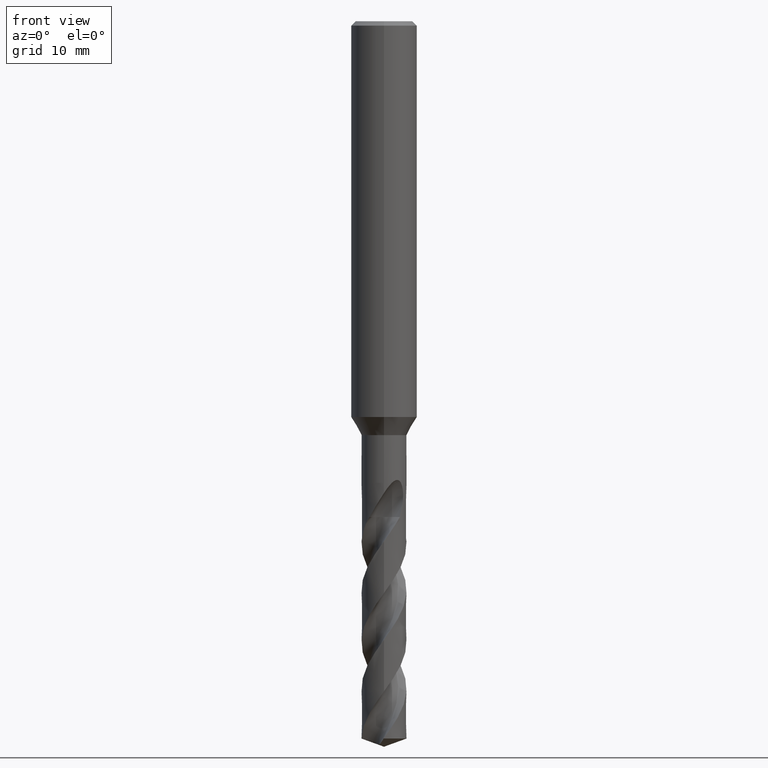
[diagram: clean part render]
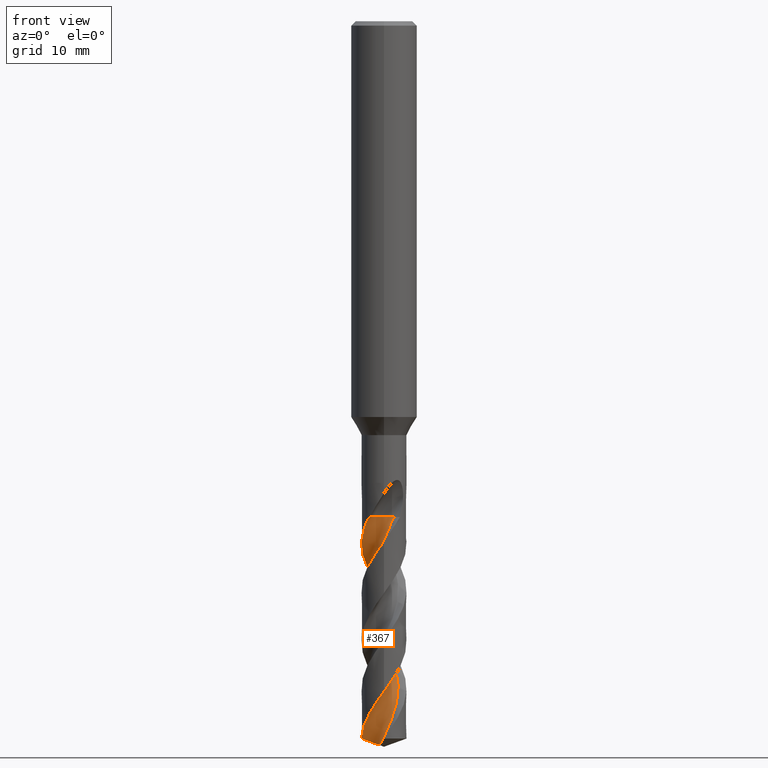
[diagram: same view with one face highlighted and labeled with its STEP entity id]
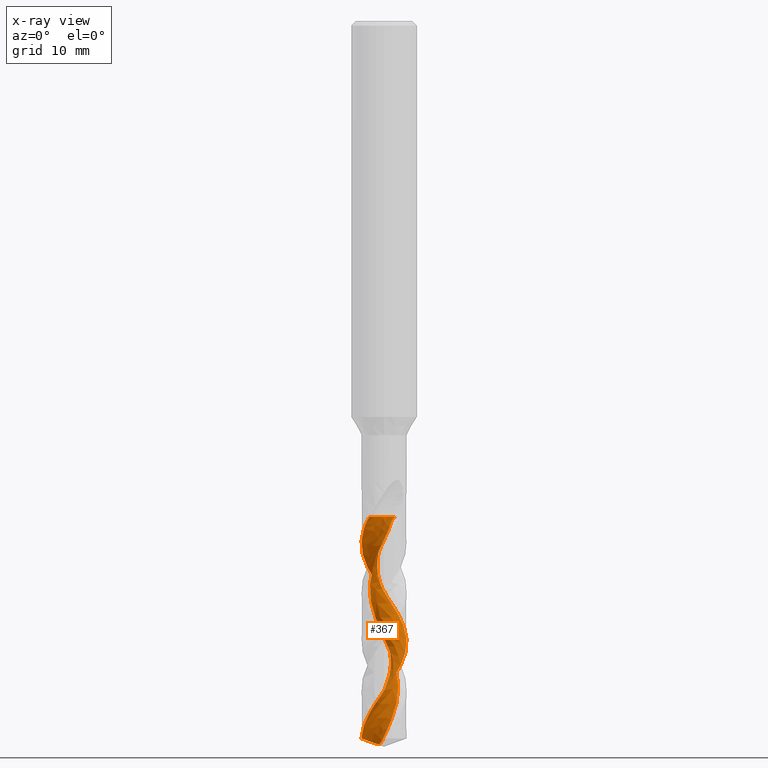
[diagram: x-ray of the same camera — body ghosted, the highlighted face saturated]
A machine part, front view. The second image highlights one B-rep face of the part: STEP entity #367.
The next image is the same camera in x-ray: the body ghosted, the highlighted face saturated — about 0% of this face is hidden behind the body in this view.
In plain terms, the highlighted face is a freeform B-spline surface patch.
Its self-contained STEP definition (entity closure, byte-faithful):
#317=VERTEX_POINT('',#827);
#367=ADVANCED_FACE('',(#880),#881,.F.);
#377=VERTEX_POINT('',#892);
#391=VERTEX_POINT('',#906);
#457=VERTEX_POINT('',#981);
#485=EDGE_CURVE('',#317,#377,#1011,.T.);
#531=EDGE_CURVE('',#731,#457,#1060,.T.);
#545=EDGE_CURVE('',#713,#731,#1075,.T.);
#555=EDGE_CURVE('',#457,#391,#1085,.T.);
#617=EDGE_CURVE('',#377,#719,#1153,.T.);
#679=EDGE_CURVE('',#391,#317,#1225,.T.);
#691=EDGE_CURVE('',#719,#713,#1238,.T.);
#713=VERTEX_POINT('',#1261);
#719=VERTEX_POINT('',#1267);
#731=VERTEX_POINT('',#1281);
#827=CARTESIAN_POINT('',(0.175767761020138,-0.626339750042314,-45.1046));
#880=FACE_OUTER_BOUND('',#1938,.T.);
#881=B_SPLINE_SURFACE_WITH_KNOTS('',3,3,((#1939,#1940,#1941,#1942,#1943,#1944,#1945,#1946,#1947,#1948,#1949,#1950,#1951,#1952,#1953,#1954,#1955,#1956,#1957,#1958,#1959,#1960,#1961,#1962,#1963,#1964,#1965,#1966,#1967,#1968,#1969,#1970,#1971,#1972,#1973,#1974,#1975,#1976,#1977,#1978,#1979,#1980,#1981,#1982,#1983,#1984,#1985,#1986,#1987,#1988,#1989,#1990,#1991,#1992),(#1993,#1994,#1995,#1996,#1997,#1998,#1999,#2000,#2001,#2002,#2003,#2004,#2005,#2006,#2007,#2008,#2009,#2010,#2011,#2012,#2013,#2014,#2015,#2016,#2017,#2018,#2019,#2020,#2021,#2022,#2023,#2024,#2025,#2026,#2027,#2028,#2029,#2030,#2031,#2032,#2033,#2034,#2035,#2036,#2037,#2038,#2039,#2040,#2041,#2042,#2043,#2044,#2045,#2046),(#2047,#2048,#2049,#2050,#2051,#2052,#2053,#2054,#2055,#2056,#2057,#2058,#2059,#2060,#2061,#2062,#2063,#2064,#2065,#2066,#2067,#2068,#2069,#2070,#2071,#2072,#2073,#2074,#2075,#2076,#2077,#2078,#2079,#2080,#2081,#2082,#2083,#2084,#2085,#2086,#2087,#2088,#2089,#2090,#2091,#2092,#2093,#2094,#2095,#2096,#2097,#2098,#2099,#2100),(#2101,#2102,#2103,#2104,#2105,#2106,#2107,#2108,#2109,#2110,#2111,#2112,#2113,#2114,#2115,#2116,#2117,#2118,#2119,#2120,#2121,#2122,#2123,#2124,#2125,#2126,#2127,#2128,#2129,#2130,#2131,#2132,#2133,#2134,#2135,#2136,#2137,#2138,#2139,#2140,#2141,#2142,#2143,#2144,#2145,#2146,#2147,#2148,#2149,#2150,#2151,#2152,#2153,#2154),(#2155,#2156,#2157,#2158,#2159,#2160,#2161,#2162,#2163,#2164,#2165,#2166,#2167,#2168,#2169,#2170,#2171,#2172,#2173,#2174,#2175,#2176,#2177,#2178,#2179,#2180,#2181,#2182,#2183,#2184,#2185,#2186,#2187,#2188,#2189,#2190,#2191,#2192,#2193,#2194,#2195,#2196,#2197,#2198,#2199,#2200,#2201,#2202,#2203,#2204,#2205,#2206,#2207,#2208),(#2209,#2210,#2211,#2212,#2213,#2214,#2215,#2216,#2217,#2218,#2219,#2220,#2221,#2222,#2223,#2224,#2225,#2226,#2227,#2228,#2229,#2230,#2231,#2232,#2233,#2234,#2235,#2236,#2237,#2238,#2239,#2240,#2241,#2242,#2243,#2244,#2245,#2246,#2247,#2248,#2249,#2250,#2251,#2252,#2253,#2254,#2255,#2256,#2257,#2258,#2259,#2260,#2261,#2262),(#2263,#2264,#2265,#2266,#2267,#2268,#2269,#2270,#2271,#2272,#2273,#2274,#2275,#2276,#2277,#2278,#2279,#2280,#2281,#2282,#2283,#2284,#2285,#2286,#2287,#2288,#2289,#2290,#2291,#2292,#2293,#2294,#2295,#2296,#2297,#2298,#2299,#2300,#2301,#2302,#2303,#2304,#2305,#2306,#2307,#2308,#2309,#2310,#2311,#2312,#2313,#2314,#2315,#2316),(#2317,#2318,#2319,#2320,#2321,#2322,#2323,#2324,#2325,#2326,#2327,#2328,#2329,#2330,#2331,#2332,#2333,#2334,#2335,#2336,#2337,#2338,#2339,#2340,#2341,#2342,#2343,#2344,#2345,#2346,#2347,#2348,#2349,#2350,#2351,#2352,#2353,#2354,#2355,#2356,#2357,#2358,#2359,#2360,#2361,#2362,#2363,#2364,#2365,#2366,#2367,#2368,#2369,#2370),(#2371,#2372,#2373,#2374,#2375,#2376,#2377,#2378,#2379,#2380,#2381,#2382,#2383,#2384,#2385,#2386,#2387,#2388,#2389,#2390,#2391,#2392,#2393,#2394,#2395,#2396,#2397,#2398,#2399,#2400,#2401,#2402,#2403,#2404,#2405,#2406,#2407,#2408,#2409,#2410,#2411,#2412,#2413,#2414,#2415,#2416,#2417,#2418,#2419,#2420,#2421,#2422,#2423,#2424),(#2425,#2426,#2427,#2428,#2429,#2430,#2431,#2432,#2433,#2434,#2435,#2436,#2437,#2438,#2439,#2440,#2441,#2442,#2443,#2444,#2445,#2446,#2447,#2448,#2449,#2450,#2451,#2452,#2453,#2454,#2455,#2456,#2457,#2458,#2459,#2460,#2461,#2462,#2463,#2464,#2465,#2466,#2467,#2468,#2469,#2470,#2471,#2472,#2473,#2474,#2475,#2476,#2477,#2478),(#2479,#2480,#2481,#2482,#2483,#2484,#2485,#2486,#2487,#2488,#2489,#2490,#2491,#2492,#2493,#2494,#2495,#2496,#2497,#2498,#2499,#2500,#2501,#2502,#2503,#2504,#2505,#2506,#2507,#2508,#2509,#2510,#2511,#2512,#2513,#2514,#2515,#2516,#2517,#2518,#2519,#2520,#2521,#2522,#2523,#2524,#2525,#2526,#2527,#2528,#2529,#2530,#2531,#2532)),.UNSPECIFIED.,.F.,.F.,.F.,(4,1,1,1,1,1,1,1,4),(4,1,2,1,2,2,2,1,2,1,2,1,2,1,2,1,2,1,2,1,2,1,2,1,2,1,2,1,2,1,2,1,2,1,4),(-2.77950559830077E-016,0.392702105990736,0.785404211981472,1.17810631797221,1.57080842396294,1.96351052995368,2.35621263594442,2.74891474193515,3.14161684792589),(0.0,0.46319880779485,0.926397615589701,1.38959642338455,1.8527952311794,2.7791928467691,3.7055904623588,4.6319880779485,5.55838569353821,6.48478330912791,7.41118092471761,8.33757854030731,9.26397615589701,10.1903737714867,11.1167713870764,12.0431690026661,12.9695666182558,13.8959642338455,14.8223618494352,15.7487594650249,16.6751570806146,17.6015546962043,18.527952311794,19.4543499273837,20.3807475429734,21.3071451585631,22.2335427741528,23.1599403897425,24.0863380053322,25.0127356209219,25.9391332365116,26.8655308521013,27.791928467691,28.7183260832807,29.6447236988704),.UNSPECIFIED.);
#892=CARTESIAN_POINT('',(0.966379269907927,-1.01528740009207,-45.1046));
#906=CARTESIAN_POINT('',(-1.3062665193908,-1.57981407973263,-45.1046));
#981=CARTESIAN_POINT('',(7.04533091023201E-013,2.04994307482472,-52.0165598744449));
#1011=CIRCLE('',#3065,1.36666667);
#1060=B_SPLINE_CURVE_WITH_KNOTS('',3,(#3836,#3837,#3838,#3839,#3840,#3841,#3842,#3843,#3844,#3845,#3846,#3847,#3848,#3849,#3850,#3851,#3852,#3853,#3854,#3855,#3856,#3857,#3858,#3859,#3860,#3861,#3862,#3863,#3864,#3865,#3866,#3867,#3868,#3869,#3870,#3871,#3872,#3873,#3874,#3875,#3876,#3877,#3878,#3879,#3880,#3881,#3882,#3883,#3884,#3885,#3886,#3887,#3888,#3889,#3890,#3891,#3892,#3893,#3894,#3895,#3896,#3897,#3898,#3899,#3900,#3901,#3902,#3903,#3904,#3905,#3906,#3907,#3908,#3909,#3910,#3911,#3912,#3913),.UNSPECIFIED.,.F.,.F.,(4,2,2,2,2,2,2,2,2,2,2,2,2,2,2,2,2,2,2,2,2,2,2,2,2,2,2,2,2,2,2,2,2,2,2,2,2,2,4),(0.0,1.15175627742879,1.80781811592752,3.05240264895701,3.6913750215055,4.15427598464295,5.45175427655156,5.67764594040228,6.48042109522554,6.88336688344574,7.56907475186713,8.22356334129114,9.02589702974429,9.77096868320212,11.0894733277366,11.8117945455709,12.323126113477,13.5699983638302,13.6169720687603,14.4320280051147,15.595138931064,16.2720113707228,17.0758114118382,17.805301288752,18.9718859434726,19.6116695099303,20.3787577381538,21.5421460266207,22.7605480203474,23.1612826828921,23.607076727968,23.9006091642226,24.0701462322376,24.1574432419735,24.1962318677597,24.2392658667535,24.3113545085256,24.4015321312595,24.5307258216989),.UNSPECIFIED.);
#1075=B_SPLINE_CURVE_WITH_KNOTS('',3,(#3959,#3960,#3961,#3962,#3963,#3964,#3965,#3966,#3967,#3968,#3969,#3970,#3971,#3972,#3973,#3974,#3975,#3976,#3977,#3978,#3979,#3980,#3981,#3982,#3983,#3984,#3985,#3986,#3987,#3988,#3989,#3990,#3991,#3992,#3993,#3994,#3995,#3996,#3997,#3998,#3999,#4000,#4001,#4002,#4003,#4004,#4005,#4006,#4007,#4008,#4009,#4010,#4011,#4012,#4013,#4014,#4015,#4016,#4017,#4018,#4019,#4020,#4021,#4022,#4023,#4024,#4025,#4026,#4027,#4028,#4029,#4030,#4031,#4032,#4033,#4034,#4035,#4036),.UNSPECIFIED.,.F.,.F.,(4,2,2,2,2,2,2,2,2,2,2,2,2,2,2,2,2,2,2,2,2,2,2,2,2,2,2,2,2,2,2,2,2,2,2,2,2,2,4),(0.0,1.15175627742879,1.80781811592752,3.05240264895701,3.6913750215055,4.15427598464295,5.45175427655156,5.67764594040228,6.48042109522554,6.88336688344574,7.56907475186713,8.22356334129114,9.02589702974429,9.77096868320212,11.0894733277366,11.8117945455709,12.323126113477,13.5699983638302,13.6169720687603,14.4320280051147,15.595138931064,16.2720113707228,17.0758114118382,17.805301288752,18.9718859434726,19.6116695099303,20.3787577381538,21.5421460266207,22.7605480203474,23.1612826828921,23.607076727968,23.9006091642226,24.0701462322376,24.1574432419735,24.1962318677597,24.2392658667535,24.3113545085256,24.4015321312595,24.5307258216989),.UNSPECIFIED.);
#1085=B_SPLINE_CURVE_WITH_KNOTS('',3,(#4056,#4057,#4058,#4059,#4060,#4061,#4062,#4063,#4064,#4065,#4066,#4067,#4068,#4069,#4070,#4071,#4072,#4073,#4074,#4075,#4076,#4077,#4078,#4079,#4080,#4081,#4082,#4083,#4084,#4085,#4086,#4087,#4088,#4089,#4090,#4091,#4092,#4093,#4094,#4095,#4096,#4097,#4098,#4099,#4100,#4101,#4102,#4103,#4104,#4105,#4106,#4107,#4108,#4109,#4110,#4111,#4112,#4113,#4114,#4115,#4116,#4117,#4118,#4119,#4120,#4121,#4122,#4123,#4124,#4125,#4126,#4127,#4128,#4129,#4130,#4131,#4132,#4133),.UNSPECIFIED.,.F.,.F.,(4,2,2,2,2,2,2,2,2,2,2,2,2,2,2,2,2,2,2,2,2,2,2,2,2,2,2,2,2,2,2,2,2,2,2,2,2,2,4),(0.0,1.15175627742879,1.80781811592752,3.05240264895701,3.6913750215055,4.15427598464295,5.45175427655156,5.67764594040228,6.48042109522554,6.88336688344574,7.56907475186713,8.22356334129114,9.02589702974429,9.77096868320212,11.0894733277366,11.8117945455709,12.323126113477,13.5699983638302,13.6169720687603,14.4320280051147,15.595138931064,16.2720113707228,17.0758114118382,17.805301288752,18.9718859434726,19.6116695099303,20.3787577381538,21.5421460266207,22.7605480203474,23.1612826828921,23.607076727968,23.9006091642226,24.0701462322376,24.1574432419735,24.1962318677597,24.2392658667535,24.3113545085256,24.4015321312595,24.5307258216989),.UNSPECIFIED.);
#1153=B_SPLINE_CURVE_WITH_KNOTS('',3,(#4290,#4291,#4292,#4293,#4294,#4295,#4296,#4297,#4298,#4299,#4300,#4301,#4302,#4303,#4304,#4305,#4306,#4307,#4308,#4309,#4310,#4311,#4312,#4313,#4314,#4315,#4316,#4317,#4318,#4319,#4320,#4321,#4322,#4323,#4324,#4325,#4326,#4327,#4328,#4329,#4330,#4331,#4332,#4333,#4334,#4335,#4336,#4337,#4338,#4339,#4340,#4341,#4342,#4343),.UNSPECIFIED.,.F.,.F.,(4,1,2,1,2,2,2,1,2,1,2,1,2,1,2,1,2,1,2,1,2,1,2,1,2,1,2,1,2,1,2,1,2,1,4),(0.0,0.46319880779485,0.926397615589701,1.38959642338455,1.8527952311794,2.7791928467691,3.7055904623588,4.6319880779485,5.55838569353821,6.48478330912791,7.41118092471761,8.33757854030731,9.26397615589701,10.1903737714867,11.1167713870764,12.0431690026661,12.9695666182558,13.8959642338455,14.8223618494352,15.7487594650249,16.6751570806146,17.6015546962043,18.527952311794,19.4543499273837,20.3807475429734,21.3071451585631,22.2335427741528,23.1599403897425,24.0863380053322,25.0127356209219,25.9391332365116,26.8655308521013,27.791928467691,28.7183260832807,29.6447236988704),.UNSPECIFIED.);
#1225=CIRCLE('',#4734,1.36666667);
#1238=B_SPLINE_CURVE_WITH_KNOTS('',3,(#4762,#4763,#4764,#4765,#4766,#4767,#4768,#4769,#4770,#4771,#4772,#4773,#4774,#4775,#4776,#4777,#4778,#4779,#4780,#4781),.UNSPECIFIED.,.F.,.F.,(4,2,2,2,2,2,2,2,2,4),(0.0,0.842595079276471,1.42158294139567,1.95669664244053,2.53391772193447,3.16704981749189,3.89774000604643,4.73609971643914,5.36126301358255,5.98825847544496),.UNSPECIFIED.);
#1261=CARTESIAN_POINT('',(-2.04555352503467,-0.134947309044112,-65.2538610197543));
#1267=CARTESIAN_POINT('',(-0.203596073334876,-1.27325017164267,-65.5306876058733));
#1281=CARTESIAN_POINT('',(3.26420123919025E-013,-2.0499815628894,-60.9665209430247));
#1938=EDGE_LOOP('',(#5471,#5472,#5473,#5474,#5475,#5476,#5477));
#1939=CARTESIAN_POINT('',(-0.966379269907928,-2.94804593990793,-45.1046));
#1940=CARTESIAN_POINT('',(-1.07617613071762,-2.93803866695515,-45.2131807193548));
#1941=CARTESIAN_POINT('',(-1.29811922955223,-2.89548649080766,-45.4322889406086));
#1942=CARTESIAN_POINT('',(-1.51570731387732,-2.79174915970808,-45.6520315388953));
#1943=CARTESIAN_POINT('',(-1.72211954141552,-2.65088579290495,-45.8682385076129));
#1944=CARTESIAN_POINT('',(-1.91936133948611,-2.50261877237837,-46.0838033666966));
#1945=CARTESIAN_POINT('',(-2.10140004672747,-2.34389380357622,-46.3010077359825));
#1946=CARTESIAN_POINT('',(-2.36372904662139,-2.09997006155862,-46.6296526783428));
#1947=CARTESIAN_POINT('',(-2.5194470259769,-1.91560530711697,-46.8484084865727));
#1948=CARTESIAN_POINT('',(-2.77898500704245,-1.508034021491,-47.2824488180033));
#1949=CARTESIAN_POINT('',(-2.88633111220045,-1.29033320556925,-47.4997967735012));
#1950=CARTESIAN_POINT('',(-3.04767455107815,-0.835430901248633,-47.9356252284432));
#1951=CARTESIAN_POINT('',(-3.15884036663883,-0.364354396781962,-48.3711186257276));
#1952=CARTESIAN_POINT('',(-3.16104079029895,0.120115781624041,-48.8069725019709));
#1953=CARTESIAN_POINT('',(-3.10331123411172,0.599543530214791,-49.242230971165));
#1954=CARTESIAN_POINT('',(-2.99363620633907,1.07120923325626,-49.6771875376543));
#1955=CARTESIAN_POINT('',(-2.78106821879143,1.50682144645161,-50.1129486844674));
#1956=CARTESIAN_POINT('',(-2.51723374860602,1.91134668208211,-50.5484449267242));
#1957=CARTESIAN_POINT('',(-2.21017868340419,2.28580270800973,-50.9835856621699));
#1958=CARTESIAN_POINT('',(-1.82676402710069,2.58221783029117,-51.419361531739));
#1959=CARTESIAN_POINT('',(-1.41115411702769,2.82812196542374,-51.8547835450512));
#1960=CARTESIAN_POINT('',(-0.970091467058388,3.02798955301424,-52.2898752040945));
#1961=CARTESIAN_POINT('',(-0.495060497817688,3.12410109640377,-52.7256521491537));
#1962=CARTESIAN_POINT('',(-0.013510652114337,3.160618836309,-53.1610929747597));
#1963=CARTESIAN_POINT('',(0.470468630491888,3.14457449404262,-53.5961937400403));
#1964=CARTESIAN_POINT('',(0.938960201723449,3.02047527545628,-54.0319684715768));
#1965=CARTESIAN_POINT('',(1.38692306204457,2.84007986879327,-54.4674068665031));
#1966=CARTESIAN_POINT('',(1.81380506848721,2.61147841088418,-54.9025077380813));
#1967=CARTESIAN_POINT('',(2.17897290235498,2.29283044216478,-55.3382828378137));
#1968=CARTESIAN_POINT('',(2.50081108742894,1.93278168544983,-55.7737195857888));
#1969=CARTESIAN_POINT('',(2.78240782593208,1.53883595544459,-56.2088200399824));
#1970=CARTESIAN_POINT('',(2.96879923591424,1.09145820730661,-56.6445963247354));
#1971=CARTESIAN_POINT('',(3.0980031145543,0.626134957766856,-57.080034154668));
#1972=CARTESIAN_POINT('',(3.17611681047289,0.148233875591089,-57.5151335586188));
#1973=CARTESIAN_POINT('',(3.14522115476306,-0.335430422342768,-57.9509087500312));
#1974=CARTESIAN_POINT('',(3.05511279503571,-0.809872390489466,-58.3863476241708));
#1975=CARTESIAN_POINT('',(2.91362618264238,-1.27298020741505,-58.8214485303677));
#1976=CARTESIAN_POINT('',(2.67183951586935,-1.69300639015323,-59.2572236370971));
#1977=CARTESIAN_POINT('',(2.38103835672252,-2.07855442167254,-59.6926607458783));
#1978=CARTESIAN_POINT('',(2.04917640652376,-2.43119727908962,-60.1277610216504));
#1979=CARTESIAN_POINT('',(1.64642630679405,-2.70079864782805,-60.5635348569588));
#1980=CARTESIAN_POINT('',(1.21497799274718,-2.91777714381203,-60.9989690444153));
#1981=CARTESIAN_POINT('',(0.761290588741468,-3.08708350868272,-61.434070755475));
#1982=CARTESIAN_POINT('',(0.280824975912633,-3.15057378789369,-61.869859924344));
#1983=CARTESIAN_POINT('',(-0.202061599688215,-3.15417449809905,-62.3053157255196));
#1984=CARTESIAN_POINT('',(-0.683779973658939,-3.10514691499742,-62.7404019963791));
#1985=CARTESIAN_POINT('',(-1.14272083329105,-2.94942415750589,-63.1761212323457));
#1986=CARTESIAN_POINT('',(-1.57743600282457,-2.7390152254545,-63.611503949819));
#1987=CARTESIAN_POINT('',(-1.98794261299874,-2.48191712409366,-64.0466743207623));
#1988=CARTESIAN_POINT('',(-2.33039331802923,-2.1387463879287,-64.4826082498247));
#1989=CARTESIAN_POINT('',(-2.62623485548055,-1.75694678032086,-64.9181322728605));
#1990=CARTESIAN_POINT('',(-2.87951018415919,-1.3447574049506,-65.3529345499352));
#1991=CARTESIAN_POINT('',(-3.03633400792808,-0.887429374017513,-65.78819983336));
#1992=CARTESIAN_POINT('',(-3.08662532910162,-0.652017408397743,-66.005769694248));
#1993=CARTESIAN_POINT('',(-1.09287419990184,-2.82154142051832,-45.1046000000001));
#1994=CARTESIAN_POINT('',(-1.20217610528385,-2.81103923163005,-45.2131664392312));
#1995=CARTESIAN_POINT('',(-1.42038952460024,-2.76467170329077,-45.4324743054368));
#1996=CARTESIAN_POINT('',(-1.62783818597859,-2.65208145587583,-45.652473681741));
#1997=CARTESIAN_POINT('',(-1.82012266059269,-2.50096635668482,-45.8684574142085));
#1998=CARTESIAN_POINT('',(-2.00366361560977,-2.34431736836073,-46.0837211442099));
#1999=CARTESIAN_POINT('',(-2.17336857226469,-2.1799908563151,-46.3008605593519));
#2000=CARTESIAN_POINT('',(-2.41822990497218,-1.92911613160261,-46.6297979839008));
#2001=CARTESIAN_POINT('',(-2.56113230597182,-1.74106525612898,-46.8486953430213));
#2002=CARTESIAN_POINT('',(-2.79290196742899,-1.32912578591783,-47.2825395222047));
#2003=CARTESIAN_POINT('',(-2.88648731711329,-1.11090492214941,-47.4998365495922));
#2004=CARTESIAN_POINT('',(-3.02033427897325,-0.658098128275586,-47.9357199632808));
#2005=CARTESIAN_POINT('',(-3.10487084346648,-0.192205284195671,-48.3712211709906));
#2006=CARTESIAN_POINT('',(-3.08209545762736,0.281256604241955,-48.80713253033));
#2007=CARTESIAN_POINT('',(-3.00035731586397,0.746509861817196,-49.2423658896814));
#2008=CARTESIAN_POINT('',(-2.86897518385485,1.2016301565312,-49.6772555452081));
#2009=CARTESIAN_POINT('',(-2.63891633731023,1.61632432637002,-50.1130617138276));
#2010=CARTESIAN_POINT('',(-2.35985963704181,1.99755166503766,-50.548566120194));
#2011=CARTESIAN_POINT('',(-2.04066842207906,2.34757975064174,-50.9836655708864));
#2012=CARTESIAN_POINT('',(-1.65082593177265,2.61748591621417,-51.4194883929476));
#2013=CARTESIAN_POINT('',(-1.23187892753762,2.83575961328164,-51.854908194698));
#2014=CARTESIAN_POINT('',(-0.79074706513977,3.00835479291231,-52.289951738333));
#2015=CARTESIAN_POINT('',(-0.321684819288761,3.07785176450935,-52.7257758184601));
#2016=CARTESIAN_POINT('',(0.150625369865215,3.08811113221048,-53.1612170605291));
#2017=CARTESIAN_POINT('',(0.622592169443301,3.04757726670567,-53.5962709829467));
#2018=CARTESIAN_POINT('',(1.07395026199066,2.90225618533804,-54.0320925244141));
#2019=CARTESIAN_POINT('',(1.50200740570961,2.70240801757254,-54.4675310055051));
#2020=CARTESIAN_POINT('',(1.90728012404932,2.45716579402703,-54.9025850402703));
#2021=CARTESIAN_POINT('',(2.24769114081905,2.12707193325932,-55.3384070065163));
#2022=CARTESIAN_POINT('',(2.54306865681822,1.75839059280959,-55.7738436108835));
#2023=CARTESIAN_POINT('',(2.79792172390894,1.35908798837543,-56.2088971654534));
#2024=CARTESIAN_POINT('',(2.95704574978357,0.912405238206338,-56.6447204900363));
#2025=CARTESIAN_POINT('',(3.05869917637343,0.4510544481963,-57.0801583199689));
#2026=CARTESIAN_POINT('',(3.11045975522163,-0.0198112442588572,-57.5152106973938));
#2027=CARTESIAN_POINT('',(3.05542258679578,-0.490782587636976,-57.9510327689429));
#2028=CARTESIAN_POINT('',(2.94237026077188,-0.94946849740721,-58.3864717723297));
#2029=CARTESIAN_POINT('',(2.78036832618894,-1.39460383522524,-58.821525822894));
#2030=CARTESIAN_POINT('',(2.52255269517589,-1.79256298693016,-59.2573478072903));
#2031=CARTESIAN_POINT('',(2.21815204659194,-2.15382722088211,-59.6927848729891));
#2032=CARTESIAN_POINT('',(1.87584864693055,-2.48127264911647,-60.1278383376854));
#2033=CARTESIAN_POINT('',(1.46849265459759,-2.72398797813708,-60.5636588398371));
#2034=CARTESIAN_POINT('',(1.03559919442011,-2.91316722495936,-60.9990923092541));
#2035=CARTESIAN_POINT('',(0.583703916261699,-3.05525776249145,-61.4341468993358));
#2036=CARTESIAN_POINT('',(0.111008093306298,-3.09260569913096,-61.8699850401261));
#2037=CARTESIAN_POINT('',(-0.3608709711027,-3.0706428911785,-62.3054440868405));
#2038=CARTESIAN_POINT('',(-0.828934112357689,-2.9980004988344,-62.7404830200832));
#2039=CARTESIAN_POINT('',(-1.26933725516967,-2.82227814669361,-63.1762410272143));
#2040=CARTESIAN_POINT('',(-1.68288113827485,-2.59382904196236,-63.6116133187534));
#2041=CARTESIAN_POINT('',(-2.07070638736544,-2.32160208027464,-64.0467412385207));
#2042=CARTESIAN_POINT('',(-2.3876166764475,-1.9686719569884,-64.4827451526569));
#2043=CARTESIAN_POINT('',(-2.65634528847364,-1.58004835287644,-64.9182909753732));
#2044=CARTESIAN_POINT('',(-2.88257304657753,-1.16438689693639,-65.3530235173981));
#2045=CARTESIAN_POINT('',(-3.01260558598073,-0.709587766066322,-65.7883030125321));
#2046=CARTESIAN_POINT('',(-3.04954109879691,-0.47700566833388,-66.0058766646689));
#2047=CARTESIAN_POINT('',(-1.29550440734993,-2.51828310851192,-45.1045999999999));
#2048=CARTESIAN_POINT('',(-1.40361979903732,-2.50698811966479,-45.2131429528619));
#2049=CARTESIAN_POINT('',(-1.61285819971665,-2.45447468704694,-45.4327791707448));
#2050=CARTESIAN_POINT('',(-1.79651198420205,-2.32821408476769,-45.653200865913));
#2051=CARTESIAN_POINT('',(-1.95646998901246,-2.16221819118686,-45.8688174444235));
#2052=CARTESIAN_POINT('',(-2.1092817755856,-1.99425724853417,-46.0835859154305));
#2053=CARTESIAN_POINT('',(-2.2520969136675,-1.82363464139281,-46.3006185002309));
#2054=CARTESIAN_POINT('',(-2.45926609139436,-1.56580720305335,-46.630036966456));
#2055=CARTESIAN_POINT('',(-2.57507691507659,-1.37548176412815,-46.8491671276038));
#2056=CARTESIAN_POINT('',(-2.74958454646594,-0.965850394861518,-47.2826887038378));
#2057=CARTESIAN_POINT('',(-2.8154473755786,-0.752061813502079,-47.4999019687435));
#2058=CARTESIAN_POINT('',(-2.89514628313428,-0.314379519535756,-47.9358757714814));
#2059=CARTESIAN_POINT('',(-2.92849690863834,0.13055867804064,-48.3713898253746));
#2060=CARTESIAN_POINT('',(-2.8601580152806,0.572076654183896,-48.807395725298));
#2061=CARTESIAN_POINT('',(-2.73604950756109,0.999439515315974,-49.2425877877557));
#2062=CARTESIAN_POINT('',(-2.56784185496726,1.41284379462483,-49.6773673961801));
#2063=CARTESIAN_POINT('',(-2.31112701035946,1.77875520243217,-50.1132476098153));
#2064=CARTESIAN_POINT('',(-2.01089699951066,2.10734321505314,-50.5487654456643));
#2065=CARTESIAN_POINT('',(-1.6771527474038,2.40369958236576,-50.9837969927725));
#2066=CARTESIAN_POINT('',(-1.28499894217712,2.61804288334753,-51.4196970425567));
#2067=CARTESIAN_POINT('',(-0.870366811499674,2.77974028600276,-51.8551131998106));
#2068=CARTESIAN_POINT('',(-0.439941841114791,2.89777461845361,-52.290077615825));
#2069=CARTESIAN_POINT('',(0.00660181578658783,2.91642719879211,-52.725979212002));
#2070=CARTESIAN_POINT('',(0.449994556018583,2.87785515885495,-53.161421144649));
#2071=CARTESIAN_POINT('',(0.888202814739896,2.79312951632613,-53.5963980124439));
#2072=CARTESIAN_POINT('',(1.29686199236986,2.61218700100876,-54.0322965693694));
#2073=CARTESIAN_POINT('',(1.67738041317203,2.38135731181107,-54.4677351565634));
#2074=CARTESIAN_POINT('',(2.03282619323336,2.11143382646279,-54.9027121784993));
#2075=CARTESIAN_POINT('',(2.31918239562474,1.76829788817419,-55.3386112401952));
#2076=CARTESIAN_POINT('',(2.55821682399087,1.39287749661812,-55.7740475764329));
#2077=CARTESIAN_POINT('',(2.75746358219922,0.993498424607953,-56.209024023357));
#2078=CARTESIAN_POINT('',(2.86234069209427,0.559048635617358,-56.6449246956638));
#2079=CARTESIAN_POINT('',(2.91048452062639,0.116596929748046,-57.0803625385638));
#2080=CARTESIAN_POINT('',(2.91234769611109,-0.329721222546639,-57.5153375622007));
#2081=CARTESIAN_POINT('',(2.81408519853839,-0.765711792176213,-57.9512367412954));
#2082=CARTESIAN_POINT('',(2.66142022414288,-1.18376821810716,-58.3866759552484));
#2083=CARTESIAN_POINT('',(2.46554331922434,-1.5848079316867,-58.8216529430663));
#2084=CARTESIAN_POINT('',(2.18445177659153,-1.93226817427364,-59.257552030951));
#2085=CARTESIAN_POINT('',(1.86251467202006,-2.23956700005582,-59.6929890187853));
#2086=CARTESIAN_POINT('',(1.50935292602947,-2.51247597994317,-60.1279654983159));
#2087=CARTESIAN_POINT('',(1.10347868857013,-2.69959895634082,-60.5638627543361));
#2088=CARTESIAN_POINT('',(0.678750327545796,-2.8326167203506,-60.9992950379796));
#2089=CARTESIAN_POINT('',(0.241261333477002,-2.92099973711881,-61.434272170556));
#2090=CARTESIAN_POINT('',(-0.205502309280961,-2.90916375989652,-61.8701907398906));
#2091=CARTESIAN_POINT('',(-0.645205288824354,-2.84046197397662,-62.3056552756196));
#2092=CARTESIAN_POINT('',(-1.07657291411187,-2.72603012589681,-62.7406162220894));
#2093=CARTESIAN_POINT('',(-1.47195531936774,-2.517688784099,-63.1764380878293));
#2094=CARTESIAN_POINT('',(-1.83599159284527,-2.26158601062107,-63.611793159144));
#2095=CARTESIAN_POINT('',(-2.17244745635647,-1.96812728728621,-64.046851313131));
#2096=CARTESIAN_POINT('',(-2.43440672101829,-1.60583899194445,-64.4829703176803));
#2097=CARTESIAN_POINT('',(-2.64620722266441,-1.21435210424951,-64.9185519863667));
#2098=CARTESIAN_POINT('',(-2.81697051325484,-0.802503850433453,-65.3531698425876));
#2099=CARTESIAN_POINT('',(-2.89443741237972,-0.36341539262451,-65.7884727084778));
#2100=CARTESIAN_POINT('',(-2.90579227416236,-0.141802969604347,-66.0060525967112));
#2101=CARTESIAN_POINT('',(-1.40224959044969,-1.9816668841844,-45.1046));
#2102=CARTESIAN_POINT('',(-1.50826544555003,-1.96995425257383,-45.2131282913284));
#2103=CARTESIAN_POINT('',(-1.70153697485429,-1.91407523217955,-45.4329694865268));
#2104=CARTESIAN_POINT('',(-1.84436588845966,-1.78252710854264,-45.6536548189093));
#2105=CARTESIAN_POINT('',(-1.95097859711115,-1.61446519091087,-45.8690421977033));
#2106=CARTESIAN_POINT('',(-2.05470797588256,-1.44846713585671,-46.0835014970104));
#2107=CARTESIAN_POINT('',(-2.15664144177001,-1.28455458926966,-46.3004673923363));
#2108=CARTESIAN_POINT('',(-2.30758052746428,-1.0387286439184,-46.6301861534327));
#2109=CARTESIAN_POINT('',(-2.38453869292653,-0.860802337228843,-46.8494616454901));
#2110=CARTESIAN_POINT('',(-2.48100984937267,-0.487241745511196,-47.2827818313632));
#2111=CARTESIAN_POINT('',(-2.51099553297592,-0.295510221326928,-47.4999428070258));
#2112=CARTESIAN_POINT('',(-2.52433114953638,0.0901266779203174,-47.9359730369569));
#2113=CARTESIAN_POINT('',(-2.49877062156464,0.476639671926081,-48.3714951091651));
#2114=CARTESIAN_POINT('',(-2.38562124950595,0.847729708818681,-48.8075600287984));
#2115=CARTESIAN_POINT('',(-2.22454140807505,1.19825611966336,-49.2427263092532));
#2116=CARTESIAN_POINT('',(-2.02924334860071,1.53270490217594,-49.6774372205902));
#2117=CARTESIAN_POINT('',(-1.76358898053835,1.81570474655895,-50.1133636582559));
#2118=CARTESIAN_POINT('',(-1.46423198533497,2.05918358685015,-50.5488898762177));
#2119=CARTESIAN_POINT('',(-1.14112870352378,2.27280030665212,-50.9838790364653));
#2120=CARTESIAN_POINT('',(-0.777667594890404,2.40881041804975,-51.4198272911199));
#2121=CARTESIAN_POINT('',(-0.40149342331098,2.49457385055611,-51.8552411800344));
#2122=CARTESIAN_POINT('',(-0.0172284164655999,2.54313684964642,-52.29015619388));
#2123=CARTESIAN_POINT('',(0.368918632357061,2.50424939898343,-52.7261061842812));
#2124=CARTESIAN_POINT('',(0.744201881339235,2.41460048741577,-53.161548545059));
#2125=CARTESIAN_POINT('',(1.11025455253617,2.28800725487644,-53.5964773166716));
#2126=CARTESIAN_POINT('',(1.43928734450235,2.08220728129328,-54.0324239391406));
#2127=CARTESIAN_POINT('',(1.73613522332438,1.83572906266679,-54.467862607913));
#2128=CARTESIAN_POINT('',(2.00835581514602,1.56020240619254,-54.9027915463524));
#2129=CARTESIAN_POINT('',(2.21230884847588,1.23002135440528,-55.3387387271263));
#2130=CARTESIAN_POINT('',(2.36938697961413,0.877605044999587,-55.7741749126314));
#2131=CARTESIAN_POINT('',(2.49152321518621,0.510041078537173,-56.2091032101963));
#2132=CARTESIAN_POINT('',(2.52824013609431,0.123685936157464,-56.645052176465));
#2133=CARTESIAN_POINT('',(2.51307235227546,-0.26185551836138,-57.0804900213508));
#2134=CARTESIAN_POINT('',(2.45987270663959,-0.645508575576399,-57.5154167603289));
#2135=CARTESIAN_POINT('',(2.3217836368242,-1.00820453886713,-57.951364073887));
#2136=CARTESIAN_POINT('',(2.13754170716098,-1.34721143686587,-58.3868034183479));
#2137=CARTESIAN_POINT('',(1.92002967453787,-1.66769147972783,-58.8217322993584));
#2138=CARTESIAN_POINT('',(1.63566832831332,-1.93180204491257,-59.2576795203424));
#2139=CARTESIAN_POINT('',(1.32040593054906,-2.15424157586206,-59.6931164587973));
#2140=CARTESIAN_POINT('',(0.983502154855403,-2.34533340518923,-60.1280448804561));
#2141=CARTESIAN_POINT('',(0.611594480696924,-2.45625974494136,-60.5639900494628));
#2142=CARTESIAN_POINT('',(0.230422108726068,-2.51612867843253,-60.9994215946323));
#2143=CARTESIAN_POINT('',(-0.156269669316465,-2.53834666893577,-61.4343503551325));
#2144=CARTESIAN_POINT('',(-0.538858908944125,-2.47323155151482,-61.8703191844067));
#2145=CARTESIAN_POINT('',(-0.907137307459149,-2.35822349098265,-62.3057870786548));
#2146=CARTESIAN_POINT('',(-1.26365796804657,-2.20693949491345,-62.7406994033629));
#2147=CARTESIAN_POINT('',(-1.57791963784504,-1.97923473130548,-63.1765610825165));
#2148=CARTESIAN_POINT('',(-1.8574669972968,-1.71322587185854,-63.6119054492988));
#2149=CARTESIAN_POINT('',(-2.11054014390234,-1.41983019917687,-64.0469200211752));
#2150=CARTESIAN_POINT('',(-2.2909689290307,-1.07611686913723,-64.4831108715211));
#2151=CARTESIAN_POINT('',(-2.42222723343108,-0.713341425970185,-64.9187149335792));
#2152=CARTESIAN_POINT('',(-2.51830944558577,-0.33861771030713,-65.3532611841543));
#2153=CARTESIAN_POINT('',(-2.53194269728067,0.0485213286695628,-65.7885786423817));
#2154=CARTESIAN_POINT('',(-2.51414167579554,0.240245853275011,-66.0061624243423));
#2155=CARTESIAN_POINT('',(-1.29551351883117,-1.44504884745596,-45.1046));
#2156=CARTESIAN_POINT('',(-1.39942983169819,-1.43375382902341,-45.213136433244));
#2157=CARTESIAN_POINT('',(-1.57666190116416,-1.38087578151116,-45.4328638017321));
#2158=CARTESIAN_POINT('',(-1.67975116060951,-1.26006522439716,-45.6534027332511));
#2159=CARTESIAN_POINT('',(-1.73628786173631,-1.11050939748737,-45.8689173894259));
#2160=CARTESIAN_POINT('',(-1.79542195627253,-0.965108174671862,-46.0835483755555));
#2161=CARTESIAN_POINT('',(-1.86215373857232,-0.823039635746379,-46.3005513045082));
#2162=CARTESIAN_POINT('',(-1.96573573514723,-0.609820199047091,-46.63010330787));
#2163=CARTESIAN_POINT('',(-2.01154408713814,-0.458217165037269,-46.8492980959613));
#2164=CARTESIAN_POINT('',(-2.04972253891597,-0.147845396255669,-47.2827301166315));
#2165=CARTESIAN_POINT('',(-2.05500305435032,0.00977840007522127,-47.4999201293318));
#2166=CARTESIAN_POINT('',(-2.02694413579848,0.321935406136009,-47.9359190239371));
#2167=CARTESIAN_POINT('',(-1.96931538413088,0.631926143413767,-48.3714366443593));
#2168=CARTESIAN_POINT('',(-1.84171836739717,0.920801070226786,-48.8074687881962));
#2169=CARTESIAN_POINT('',(-1.67588574409473,1.18619148244745,-49.2426493874131));
#2170=CARTESIAN_POINT('',(-1.48577463382608,1.43732777324258,-49.6773984455055));
#2171=CARTESIAN_POINT('',(-1.24359032209777,1.64030643930668,-50.1132992157462));
#2172=CARTESIAN_POINT('',(-0.977609978551787,1.80548884613104,-50.5488207777881));
#2173=CARTESIAN_POINT('',(-0.69600100959984,1.94673630330205,-50.9838334776004));
#2174=CARTESIAN_POINT('',(-0.389025441117109,2.02135640802243,-51.4197549610941));
#2175=CARTESIAN_POINT('',(-0.0774406280776145,2.05168340530902,-51.8551701124401));
#2176=CARTESIAN_POINT('',(0.237592411865069,2.05372808896341,-52.2901125557257));
#2177=CARTESIAN_POINT('',(0.545920628191997,1.98479360655663,-52.7260356792065));
#2178=CARTESIAN_POINT('',(0.838732572704515,1.87402042896957,-53.1614777938555));
#2179=CARTESIAN_POINT('',(1.12210005050138,1.73635957667976,-53.596433283749));
#2180=CARTESIAN_POINT('',(1.36805519499213,1.53806623552915,-54.032353201955));
#2181=CARTESIAN_POINT('',(1.58161319126844,1.30915023153134,-54.4677918397955));
#2182=CARTESIAN_POINT('',(1.77479951401181,1.06029607883994,-54.9027474690136));
#2183=CARTESIAN_POINT('',(1.90757974375349,0.773618279171801,-55.3386679316733));
#2184=CARTESIAN_POINT('',(1.99774355853009,0.473818483224335,-55.7741042016696));
#2185=CARTESIAN_POINT('',(2.06081420901626,0.165156980560018,-56.2090592329825));
#2186=CARTESIAN_POINT('',(2.05296458574717,-0.150680648317539,-56.6449813919901));
#2187=CARTESIAN_POINT('',(2.00108332669999,-0.459415477311074,-57.0804192214125));
#2188=CARTESIAN_POINT('',(1.92099338131014,-0.764101764895305,-57.5153727832284));
#2189=CARTESIAN_POINT('',(1.77415823168103,-1.04384140630631,-57.9512933665322));
#2190=CARTESIAN_POINT('',(1.59099418674083,-1.29773208941761,-58.3867326345216));
#2191=CARTESIAN_POINT('',(1.38432301193025,-1.53550526681874,-58.8216882328356));
#2192=CARTESIAN_POINT('',(1.1288375062028,-1.72135960961806,-59.2576087239134));
#2193=CARTESIAN_POINT('',(0.852216194809019,-1.86795378554723,-59.6930456897952));
#2194=CARTESIAN_POINT('',(0.561643139185008,-1.98967816659835,-60.1280007999692));
#2195=CARTESIAN_POINT('',(0.25027578803409,-2.04320665121766,-60.5639193581251));
#2196=CARTESIAN_POINT('',(-0.0626631038680459,-2.05216322376701,-60.9993513189543));
#2197=CARTESIAN_POINT('',(-0.377103934528652,-2.03269214377711,-61.4343069289152));
#2198=CARTESIAN_POINT('',(-0.68001470154117,-1.94291224556175,-61.8702478735332));
#2199=CARTESIAN_POINT('',(-0.964584707509138,-1.81245600847849,-62.3057138708728));
#2200=CARTESIAN_POINT('',(-1.23785300118108,-1.65576800687088,-62.740653223742));
#2201=CARTESIAN_POINT('',(-1.46975891262076,-1.44121756388072,-63.1764927740724));
#2202=CARTESIAN_POINT('',(-1.66745784760104,-1.19838942461281,-63.6118431011747));
#2203=CARTESIAN_POINT('',(-1.84351958729521,-0.936961443766649,-64.0468818567487));
#2204=CARTESIAN_POINT('',(-1.95573257821122,-0.641609647662198,-64.4830328322859));
#2205=CARTESIAN_POINT('',(-2.02356716510519,-0.33618243349656,-64.9186244349523));
#2206=CARTESIAN_POINT('',(-2.06486012165896,-0.0243367762895428,-65.3532104582963));
#2207=CARTESIAN_POINT('',(-2.03939917897311,0.290379079985054,-65.7885198335579));
#2208=CARTESIAN_POINT('',(-2.00609935272,0.443333274281391,-66.0061014357074));
#2209=CARTESIAN_POINT('',(-0.991546038895112,-0.990125472075406,-45.1046));
#2210=CARTESIAN_POINT('',(-1.093682444329,-0.980019742866995,-45.2131661386767));
#2211=CARTESIAN_POINT('',(-1.25724436600173,-0.936052352561626,-45.4324782063595));
#2212=CARTESIAN_POINT('',(-1.32772928178389,-0.840369727666526,-45.6524829872523));
#2213=CARTESIAN_POINT('',(-1.34508299809668,-0.727074678343783,-45.8684620208352));
#2214=CARTESIAN_POINT('',(-1.37089826280697,-0.617768505027574,-46.083719414111));
#2215=CARTESIAN_POINT('',(-1.41346756935956,-0.509352315313331,-46.3008574616854));
#2216=CARTESIAN_POINT('',(-1.48577527579025,-0.344380287521562,-46.6298010424446));
#2217=CARTESIAN_POINT('',(-1.51287901056202,-0.229017119163692,-46.8487013785058));
#2218=CARTESIAN_POINT('',(-1.52138319483305,0.000667846488251952,-47.2825414326846));
#2219=CARTESIAN_POINT('',(-1.51689171649525,0.117325915203886,-47.4998373866549));
#2220=CARTESIAN_POINT('',(-1.4787090572208,0.345755354708015,-47.9357219570719));
#2221=CARTESIAN_POINT('',(-1.42073718181892,0.572776772453709,-48.3712233296823));
#2222=CARTESIAN_POINT('',(-1.31125491210282,0.780166119200637,-48.8071358970214));
#2223=CARTESIAN_POINT('',(-1.17361163599409,0.965082360931571,-49.242368730303));
#2224=CARTESIAN_POINT('',(-1.02017515549811,1.14123293358977,-49.6772569751864));
#2225=CARTESIAN_POINT('',(-0.830297318257248,1.2792634878464,-50.1130640939553));
#2226=CARTESIAN_POINT('',(-0.625115897210093,1.38488230576021,-50.548568669411));
#2227=CARTESIAN_POINT('',(-0.409537350583995,1.47514861620767,-50.9836672520589));
#2228=CARTESIAN_POINT('',(-0.178240626327675,1.51466810890463,-51.4194910652712));
#2229=CARTESIAN_POINT('',(0.0524567246013311,1.51849603284552,-51.854910815555));
#2230=CARTESIAN_POINT('',(0.285725893000173,1.5040575148183,-52.2899533492217));
#2231=CARTESIAN_POINT('',(0.510660442998175,1.4371434609389,-52.7257784232394));
#2232=CARTESIAN_POINT('',(0.719194971711837,1.33841464680283,-53.1612196698883));
#2233=CARTESIAN_POINT('',(0.921935910323003,1.22217111736959,-53.5962726070189));
#2234=CARTESIAN_POINT('',(1.09401015893076,1.06260566547756,-54.0320951403572));
#2235=CARTESIAN_POINT('',(1.23733925214133,0.881788890198502,-54.4675336128959));
#2236=CARTESIAN_POINT('',(1.367714660172,0.687822208313571,-54.9025866651406));
#2237=CARTESIAN_POINT('',(1.45138803165029,0.468572950283028,-55.3384096288863));
#2238=CARTESIAN_POINT('',(1.49986676186804,0.242991589162547,-55.773846211889));
#2239=CARTESIAN_POINT('',(1.53090910311082,0.011352407514617,-56.2088987920424));
#2240=CARTESIAN_POINT('',(1.50887153503642,-0.222280658909373,-56.6447231054471));
#2241=CARTESIAN_POINT('',(1.45246431724671,-0.446005775417125,-57.0801609308104));
#2242=CARTESIAN_POINT('',(1.37775046021203,-0.667445777793881,-57.515212321284));
#2243=CARTESIAN_POINT('',(1.25458125326702,-0.867196923866847,-57.9510353803465));
#2244=CARTESIAN_POINT('',(1.10498583462522,-1.0428630705291,-58.3864743837378));
#2245=CARTESIAN_POINT('',(0.939981054329169,-1.20837375088101,-58.8215274487213));
#2246=CARTESIAN_POINT('',(0.741120881048816,-1.33297931187809,-59.2573504235419));
#2247=CARTESIAN_POINT('',(0.529224192242325,-1.4242890093826,-59.6927874822856));
#2248=CARTESIAN_POINT('',(0.308001066582528,-1.49965637693075,-60.1278399672833));
#2249=CARTESIAN_POINT('',(0.0745309416886496,-1.52332421677716,-60.5636614472666));
#2250=CARTESIAN_POINT('',(-0.15588506420358,-1.51135596858026,-60.9990949052848));
#2251=CARTESIAN_POINT('',(-0.387620935844132,-1.48101864680656,-61.4341485118646));
#2252=CARTESIAN_POINT('',(-0.607479671603739,-1.3989433787981,-61.8699876513002));
#2253=CARTESIAN_POINT('',(-0.808801508996228,-1.28624893931601,-62.3054468102211));
#2254=CARTESIAN_POINT('',(-1.00308664759962,-1.15642780202966,-62.7404847109225));
#2255=CARTESIAN_POINT('',(-1.1639398809549,-0.985546762454017,-63.1762435551177));
#2256=CARTESIAN_POINT('',(-1.29489175721019,-0.795457043986851,-63.6116156137264));
#2257=CARTESIAN_POINT('',(-1.41203786594746,-0.593034530174441,-64.0467426414114));
#2258=CARTESIAN_POINT('',(-1.47973513269615,-0.368468116351972,-64.48274805147));
#2259=CARTESIAN_POINT('',(-1.51092032932507,-0.140295040063649,-64.9182942977369));
#2260=CARTESIAN_POINT('',(-1.52565713619709,0.0924918015055846,-65.3530253974392));
#2261=CARTESIAN_POINT('',(-1.49179328380717,0.325336652685652,-65.7883051862734));
#2262=CARTESIAN_POINT('',(-1.45901131917485,0.436540604470947,-66.0058789159179));
#2263=CARTESIAN_POINT('',(-0.536624147584063,-0.686155771064292,-45.1046000000001));
#2264=CARTESIAN_POINT('',(-0.637571259282871,-0.677829946055523,-45.2132128854216));
#2265=CARTESIAN_POINT('',(-0.791913533460524,-0.647326309683101,-45.4318714045131));
#2266=CARTESIAN_POINT('',(-0.84189320569566,-0.587336424473304,-45.6510356061634));
#2267=CARTESIAN_POINT('',(-0.836922307000301,-0.522536381336,-45.8677454185946));
#2268=CARTESIAN_POINT('',(-0.84576776133889,-0.459328246597251,-46.0839885732527));
#2269=CARTESIAN_POINT('',(-0.878892375156173,-0.391249405590264,-46.3013392535523));
#2270=CARTESIAN_POINT('',(-0.940769888369431,-0.282820342918147,-46.6293253749334));
#2271=CARTESIAN_POINT('',(-0.964461852284976,-0.208096359483639,-46.8477623407635));
#2272=CARTESIAN_POINT('',(-0.976427918472912,-0.0643121559106613,-47.2822445039463));
#2273=CARTESIAN_POINT('',(-0.978585344217514,0.0107589419710824,-47.4997071773815));
#2274=CARTESIAN_POINT('',(-0.963090997714011,0.15796009615088,-47.9354118370913));
#2275=CARTESIAN_POINT('',(-0.936553346704902,0.30819665247096,-48.370887641011));
#2276=CARTESIAN_POINT('',(-0.874990362229174,0.447235576864788,-48.8066120367617));
#2277=CARTESIAN_POINT('',(-0.794186927884367,0.568591127148597,-49.241927065021));
#2278=CARTESIAN_POINT('',(-0.703329288697187,0.689498824442814,-49.6770343489749));
#2279=CARTESIAN_POINT('',(-0.586631042425928,0.787542242295209,-50.1126940867665));
#2280=CARTESIAN_POINT('',(-0.460414582308484,0.861398474367019,-50.5481719347081));
#2281=CARTESIAN_POINT('',(-0.325349886299844,0.929833284106974,-50.9834056685607));
#2282=CARTESIAN_POINT('',(-0.177403716223077,0.965885398353074,-51.4190757741793));
#2283=CARTESIAN_POINT('',(-0.0315773598550169,0.976185907015033,-51.8545027714078));
#2284=CARTESIAN_POINT('',(0.119844031475965,0.977808765317347,-52.2897028094092));
#2285=CARTESIAN_POINT('',(0.26850619719452,0.944674997115387,-52.7253735821885));
#2286=CARTESIAN_POINT('',(0.40378787595438,0.889325508608254,-53.160813470464));
#2287=CARTESIAN_POINT('',(0.540235768438398,0.823723596882546,-53.5960197557784));
#2288=CARTESIAN_POINT('',(0.658873743871243,0.728211234660514,-54.0316890281001));
#2289=CARTESIAN_POINT('',(0.755726788512243,0.618707916817921,-54.467127254894));
#2290=CARTESIAN_POINT('',(0.849077176917996,0.499487426414187,-54.9023336134057));
#2291=CARTESIAN_POINT('',(0.913185817102774,0.361326462487753,-55.3380031345003));
#2292=CARTESIAN_POINT('',(0.951554974880365,0.220266196700757,-55.7734402296066));
#2293=CARTESIAN_POINT('',(0.982482372308607,0.0720430695380245,-56.2086463070747));
#2294=CARTESIAN_POINT('',(0.978795475350174,-0.0802134789936427,-56.6443166428124));
#2295=CARTESIAN_POINT('',(0.950738867529449,-0.223667947609153,-57.0797544689491));
#2296=CARTESIAN_POINT('',(0.912849008738085,-0.370255837052309,-57.514959804276));
#2297=CARTESIAN_POINT('',(0.842154791012661,-0.505164020851952,-57.9506293945119));
#2298=CARTESIAN_POINT('',(0.753508139930754,-0.621406468618777,-58.3860679804004));
#2299=CARTESIAN_POINT('',(0.654651867817778,-0.736100498312136,-58.8212744263243));
#2300=CARTESIAN_POINT('',(0.531545688622961,-0.825789426914134,-59.2569439442323));
#2301=CARTESIAN_POINT('',(0.400603278135956,-0.890792218076391,-59.6923811461058));
#2302=CARTESIAN_POINT('',(0.261191228480527,-0.949870542815697,-60.1275868673929));
#2303=CARTESIAN_POINT('',(0.111115908898019,-0.97576103555882,-60.5632555839626));
#2304=CARTESIAN_POINT('',(-0.0350513588127793,-0.976041164183787,-60.9986913889805));
#2305=CARTESIAN_POINT('',(-0.186219531157686,-0.967314746933843,-61.433899218057));
#2306=CARTESIAN_POINT('',(-0.332296786389668,-0.92414053595218,-61.8695781444138));
#2307=CARTESIAN_POINT('',(-0.463504653721853,-0.859713760978316,-62.3050265452651));
#2308=CARTESIAN_POINT('',(-0.595100498325733,-0.784940052851984,-62.740219523678));
#2309=CARTESIAN_POINT('',(-0.707021427750232,-0.681595133379268,-63.1758513695009));
#2310=CARTESIAN_POINT('',(-0.796489396737665,-0.565772462248464,-63.611257618448));
#2311=CARTESIAN_POINT('',(-0.881785157761163,-0.440410010860563,-64.0465235825158));
#2312=CARTESIAN_POINT('',(-0.935443995203452,-0.298276229351271,-64.4822998614763));
#2313=CARTESIAN_POINT('',(-0.962333741535761,-0.155501779222083,-64.9177748066424));
#2314=CARTESIAN_POINT('',(-0.982790504527737,-0.00591833957246507,-65.3527341474542));
#2315=CARTESIAN_POINT('',(-0.972494316406898,0.148071993133114,-65.7879674123708));
#2316=CARTESIAN_POINT('',(-0.956168035247327,0.220901981969984,-66.0055287421017));
#2317=CARTESIAN_POINT('',(-6.63198130199105E-006,-0.579417079508744,-45.1046));
#2318=CARTESIAN_POINT('',(-0.100536126365216,-0.573190796610038,-45.2132695569583));
#2319=CARTESIAN_POINT('',(-0.251512880862084,-0.558654242974258,-45.4311357776317));
#2320=CARTESIAN_POINT('',(-0.296208196201584,-0.539487927708663,-45.6492809437227));
#2321=CARTESIAN_POINT('',(-0.2891698225981,-0.528034080948773,-45.8668766808199));
#2322=CARTESIAN_POINT('',(-0.299978026698849,-0.513908859452697,-46.0843148750402));
#2323=CARTESIAN_POINT('',(-0.339813619982015,-0.486711277391675,-46.3019233308431));
#2324=CARTESIAN_POINT('',(-0.413692965644737,-0.434512451169018,-46.6287487219153));
#2325=CARTESIAN_POINT('',(-0.449785422457791,-0.398639933236928,-46.8466239439937));
#2326=CARTESIAN_POINT('',(-0.497822472242531,-0.332892633922025,-47.2818845367096));
#2327=CARTESIAN_POINT('',(-0.522037443364671,-0.293698416301429,-47.499549324158));
#2328=CARTESIAN_POINT('',(-0.558589331840195,-0.212859810105717,-47.9350358785031));
#2329=CARTESIAN_POINT('',(-0.590477596530726,-0.121533677466333,-48.3704806857995));
#2330=CARTESIAN_POINT('',(-0.599343050494073,-0.0273041316906698,-48.8059769585315));
#2331=CARTESIAN_POINT('',(-0.595376470409134,0.0570808975907068,-49.2413916351987));
#2332=CARTESIAN_POINT('',(-0.583474679354778,0.15089891273885,-49.676764458011));
#2333=CARTESIAN_POINT('',(-0.549688037151075,0.240003944083616,-50.1122455265949));
#2334=CARTESIAN_POINT('',(-0.50858070037767,0.314734230526591,-50.5476909725426));
#2335=CARTESIAN_POINT('',(-0.456255588486937,0.393810888119414,-50.9830885503625));
#2336=CARTESIAN_POINT('',(-0.386642124408726,0.458556734935923,-51.4185723165273));
#2337=CARTESIAN_POINT('',(-0.316749259652339,0.507316088359324,-51.8540080985225));
#2338=CARTESIAN_POINT('',(-0.234798781421399,0.555099657285135,-52.2893990766992));
#2339=CARTESIAN_POINT('',(-0.143675754854693,0.582363215609425,-52.7248827989815));
#2340=CARTESIAN_POINT('',(-0.0594701183957121,0.595123802955559,-53.1603210280958));
#2341=CARTESIAN_POINT('',(0.0351108988048768,0.60167796214621,-53.5957132243874));
#2342=CARTESIAN_POINT('',(0.128892528849231,0.585792235959511,-54.03119670272));
#2343=CARTESIAN_POINT('',(0.210098049775964,0.559959615645147,-54.4666346213675));
#2344=CARTESIAN_POINT('',(0.29784611760858,0.523964433745596,-54.9020268399311));
#2345=CARTESIAN_POINT('',(0.374910756388266,0.468206364908452,-55.3375103428336));
#2346=CARTESIAN_POINT('',(0.436284963706591,0.409102098131512,-55.7729480546058));
#2347=CARTESIAN_POINT('',(0.499028283637712,0.337989219650992,-56.2083402180398));
#2348=CARTESIAN_POINT('',(0.543436912105223,0.253892124330776,-56.6438238918884));
#2349=CARTESIAN_POINT('',(0.57229128694782,0.173748570636553,-57.0792617102907));
#2350=CARTESIAN_POINT('',(0.597067137096661,0.0822228954721711,-57.5146536803598));
#2351=CARTESIAN_POINT('',(0.59966798839206,-0.0128597618499764,-57.9501372159712));
#2352=CARTESIAN_POINT('',(0.59007121048154,-0.097526207418151,-58.3855752983353));
#2353=CARTESIAN_POINT('',(0.571774893346763,-0.19058592267814,-58.8209676905867));
#2354=CARTESIAN_POINT('',(0.53201833914175,-0.27700619224261,-59.2564511600652));
#2355=CARTESIAN_POINT('',(0.485935116559698,-0.348684695607488,-59.6918885528408));
#2356=CARTESIAN_POINT('',(0.428340107293177,-0.424021846558171,-60.1272800307603));
#2357=CARTESIAN_POINT('',(0.354460876148349,-0.483879906313653,-60.5627635530912));
#2358=CARTESIAN_POINT('',(0.281441895540685,-0.527716875362654,-60.9982022077446));
#2359=CARTESIAN_POINT('',(0.196438276520114,-0.569788395174937,-61.43359698669));
#2360=CARTESIAN_POINT('',(0.103639215527455,-0.590789245560059,-61.8690817206418));
#2361=CARTESIAN_POINT('',(0.0187367448336166,-0.597787574335428,-62.3045170353974));
#2362=CARTESIAN_POINT('',(-0.076007691177311,-0.597861261311998,-62.7398980472147));
#2363=CARTESIAN_POINT('',(-0.168566303776117,-0.575637261549481,-63.1753759234686));
#2364=CARTESIAN_POINT('',(-0.248129160575243,-0.544303605386289,-63.6108236190595));
#2365=CARTESIAN_POINT('',(-0.333488858614546,-0.502323937188192,-64.0462580025324));
#2366=CARTESIAN_POINT('',(-0.4057238170261,-0.441720231645872,-64.4817565503824));
#2367=CARTESIAN_POINT('',(-0.461326006843251,-0.379487523577153,-64.9171449965155));
#2368=CARTESIAN_POINT('',(-0.518908008068222,-0.304584920632549,-65.3523810724905));
#2369=CARTESIAN_POINT('',(-0.560562036338468,-0.214427553280333,-65.7875579432136));
#2370=CARTESIAN_POINT('',(-0.574123996561673,-0.170753068574822,-66.0051042258659));
#2371=CARTESIAN_POINT('',(0.536616438565942,-0.686153317768466,-45.1045999999999));
#2372=CARTESIAN_POINT('',(0.435669331136087,-0.682026597496986,-45.2133275256902));
#2373=CARTESIAN_POINT('',(0.281691780603071,-0.683529763105763,-45.4303833117704));
#2374=CARTESIAN_POINT('',(0.226255870622926,-0.704103240758369,-45.6474861158877));
#2375=CARTESIAN_POINT('',(0.214790332853057,-0.742725889661001,-45.8659880570305));
#2376=CARTESIAN_POINT('',(0.183386053312577,-0.773196598440669,-46.0846486461126));
#2377=CARTESIAN_POINT('',(0.121705789392217,-0.781200905937234,-46.3025207780448));
#2378=CARTESIAN_POINT('',(0.0152201320728928,-0.7763597886171,-46.6281588689471));
#2379=CARTESIAN_POINT('',(-0.0471970104607156,-0.771636781077223,-46.8454594866707));
#2380=CARTESIAN_POINT('',(-0.158422355079292,-0.764183328658644,-47.2815163314578));
#2381=CARTESIAN_POINT('',(-0.216745381147899,-0.749694575253109,-47.499387856873));
#2382=CARTESIAN_POINT('',(-0.326777838472125,-0.710250901978148,-47.9346513146618));
#2383=CARTESIAN_POINT('',(-0.435189021557992,-0.650993375763968,-48.3700644149042));
#2384=CARTESIAN_POINT('',(-0.526270362926017,-0.571211483343688,-48.8053273426417));
#2385=CARTESIAN_POINT('',(-0.607440464561737,-0.491579498496342,-49.2408439493128));
#2386=CARTESIAN_POINT('',(-0.678851862314589,-0.392574832114748,-49.6764883907477));
#2387=CARTESIAN_POINT('',(-0.725087149280714,-0.279999504464869,-50.1117866949098));
#2388=CARTESIAN_POINT('',(-0.762276975620537,-0.171892353320771,-50.5471990044927));
#2389=CARTESIAN_POINT('',(-0.782321857102758,-0.0513212569079013,-50.9827641710077));
#2390=CARTESIAN_POINT('',(-0.774098953964871,0.0699106884708348,-51.4180573349381));
#2391=CARTESIAN_POINT('',(-0.759643093997508,0.183259875694629,-51.8535021016886));
#2392=CARTESIAN_POINT('',(-0.724211553494977,0.300275832271693,-52.2890883920646));
#2393=CARTESIAN_POINT('',(-0.663135806267611,0.405358971852548,-52.7243807805154));
#2394=CARTESIAN_POINT('',(-0.600054733291509,0.50059154541312,-53.1598173142869));
#2395=CARTESIAN_POINT('',(-0.516541698281998,0.589831555076254,-53.5953996775972));
#2396=CARTESIAN_POINT('',(-0.415253331814161,0.657024253737939,-54.0306931041547));
#2397=CARTESIAN_POINT('',(-0.316485557861016,0.714482261721133,-54.4661307146503));
#2398=CARTESIAN_POINT('',(-0.20206502443543,0.757522097375129,-54.9017130389737));
#2399=CARTESIAN_POINT('',(-0.081496693284877,0.772937480270955,-55.3370062777661));
#2400=CARTESIAN_POINT('',(0.032494389231165,0.780748186533751,-55.7724446064508));
#2401=CARTESIAN_POINT('',(0.154140471318003,0.768701576578378,-56.2080271240801));
#2402=CARTESIAN_POINT('',(0.2690672955209,0.729171416667161,-56.6433198651682));
#2403=CARTESIAN_POINT('',(0.374728910484292,0.685741761123828,-57.0787576684528));
#2404=CARTESIAN_POINT('',(0.478472101187937,0.621106870918455,-57.5143405489037));
#2405=CARTESIAN_POINT('',(0.564030057125109,0.534770341284358,-57.9496337750432));
#2406=CARTESIAN_POINT('',(0.639550234969357,0.449026117966134,-58.3850713345358));
#2407=CARTESIAN_POINT('',(0.703961506974971,0.34512572690497,-58.8206539354074));
#2408=CARTESIAN_POINT('',(0.742461902346757,0.229829312193186,-59.255947095743));
#2409=CARTESIAN_POINT('',(0.772224741660487,0.119509492484252,-59.6913846837705));
#2410=CARTESIAN_POINT('',(0.783997914147834,-0.00215853734388793,-60.1269661712583));
#2411=CARTESIAN_POINT('',(0.767517053523238,-0.122557512799505,-60.5622602576676));
#2412=CARTESIAN_POINT('',(0.745410969182196,-0.234628480972424,-60.9977018304524));
#2413=CARTESIAN_POINT('',(0.702097009404886,-0.348951413818267,-61.4332878399429));
#2414=CARTESIAN_POINT('',(0.633962918507153,-0.449631503195613,-61.8685739259584));
#2415=CARTESIAN_POINT('',(0.564508865634834,-0.540338929879234,-62.3039958699384));
#2416=CARTESIAN_POINT('',(0.475168753466701,-0.623665657088155,-62.7395692161836));
#2417=CARTESIAN_POINT('',(0.369455693316613,-0.683798180766516,-63.1748895782392));
#2418=CARTESIAN_POINT('',(0.266712063007769,-0.734313695431084,-63.6103797010397));
#2419=CARTESIAN_POINT('',(0.149384638099819,-0.769346191787362,-64.0459863293586));
#2420=CARTESIAN_POINT('',(0.02878758456657,-0.776958878103885,-64.4812008143812));
#2421=CARTESIAN_POINT('',(-0.0841633264386542,-0.778150452454279,-64.9165007577617));
#2422=CARTESIAN_POINT('',(-0.204623606931583,-0.758037816506646,-65.3520199274853));
#2423=CARTESIAN_POINT('',(-0.318701460213392,-0.706975062945723,-65.7871390887209));
#2424=CARTESIAN_POINT('',(-0.371034078452377,-0.678799563498935,-66.0046699921662));
#2425=CARTESIAN_POINT('',(0.839874750517743,-0.888792470097874,-45.1046000000001));
#2426=CARTESIAN_POINT('',(0.738134806407395,-0.885852260527112,-45.2133611494083));
#2427=CARTESIAN_POINT('',(0.578217123413231,-0.896468164826832,-45.4299468544766));
#2428=CARTESIAN_POINT('',(0.506027915571636,-0.938776719503028,-45.646445051425));
#2429=CARTESIAN_POINT('',(0.470390855987904,-1.00351856511228,-45.865472622989));
#2430=CARTESIAN_POINT('',(0.414924816232857,-1.05619976490571,-46.0848422457588));
#2431=CARTESIAN_POINT('',(0.330810348009653,-1.08031089146948,-46.3028673183615));
#2432=CARTESIAN_POINT('',(0.192161604394045,-1.09631720837058,-46.6278167341174));
#2433=CARTESIAN_POINT('',(0.105584884726749,-1.10406252478354,-46.8447840609067));
#2434=CARTESIAN_POINT('',(-0.0594279487250915,-1.11638947360499,-47.2813027577767));
#2435=CARTESIAN_POINT('',(-0.145059904141171,-1.10841436211202,-47.4992942006343));
#2436=CARTESIAN_POINT('',(-0.310907423757044,-1.07571809706007,-47.9344282531989));
#2437=CARTESIAN_POINT('',(-0.474627991944464,-1.01668800905493,-48.3698229620874));
#2438=CARTESIAN_POINT('',(-0.620029426925607,-0.924828992854025,-48.8049505440828));
#2439=CARTESIAN_POINT('',(-0.754845055351562,-0.826404091567618,-49.2405262697583));
#2440=CARTESIAN_POINT('',(-0.876243097160801,-0.702950187355088,-49.6763282641055));
#2441=CARTESIAN_POINT('',(-0.965773608196901,-0.555504991303951,-50.1115205534491));
#2442=CARTESIAN_POINT('',(-1.0426690107989,-0.406866854473882,-50.546913647893));
#2443=CARTESIAN_POINT('',(-1.09669812838276,-0.242277572822649,-50.9825760182034));
#2444=CARTESIAN_POINT('',(-1.11187295286531,-0.0705956153467462,-51.4177586267225));
#2445=CARTESIAN_POINT('',(-1.11508075218128,0.0966755212408272,-51.853208605681));
#2446=CARTESIAN_POINT('',(-1.09063607198101,0.268197416853151,-52.2889081830514));
#2447=CARTESIAN_POINT('',(-1.02821210683584,0.428872854112368,-52.7240895928747));
#2448=CARTESIAN_POINT('',(-0.957100646105092,0.580286615907608,-53.1595251410193));
#2449=CARTESIAN_POINT('',(-0.859309123366387,0.723273817287384,-53.5952178102503));
#2450=CARTESIAN_POINT('',(-0.732202563135013,0.839716775085247,-54.0304009978525));
#2451=CARTESIAN_POINT('',(-0.60136957907301,0.943990315255433,-54.4658384316316));
#2452=CARTESIAN_POINT('',(-0.45035884423317,1.0289005411726,-54.9015310211772));
#2453=CARTESIAN_POINT('',(-0.284840140738787,1.07705071604527,-55.3367139047838));
#2454=CARTESIAN_POINT('',(-0.121372595710212,1.11264853926996,-55.7721525855083));
#2455=CARTESIAN_POINT('',(0.0516188282594882,1.12195159463953,-56.2078455258635));
#2456=CARTESIAN_POINT('',(0.221345530441074,1.09187814950418,-56.6430274993462));
#2457=CARTESIAN_POINT('',(0.383676754500509,1.05146427018443,-57.0784653182313));
#2458=CARTESIAN_POINT('',(0.542913762345497,0.983244313896997,-57.5141589162138));
#2459=CARTESIAN_POINT('',(0.681793704488468,0.881130168685837,-57.9493417593663));
#2460=CARTESIAN_POINT('',(0.809459721119596,0.773007059211739,-58.3847790192154));
#2461=CARTESIAN_POINT('',(0.922042229976388,0.641329802614143,-58.8204719426502));
#2462=CARTESIAN_POINT('',(1.00137170020667,0.488284513008319,-59.2556547254185));
#2463=CARTESIAN_POINT('',(1.06798749853985,0.334816821337198,-59.6910924164611));
#2464=CARTESIAN_POINT('',(1.11066229312065,0.166917830341148,-60.1267841299631));
#2465=CARTESIAN_POINT('',(1.11408603400899,-0.00540989824617115,-60.5619683163033));
#2466=CARTESIAN_POINT('',(1.1059276511827,-0.172492949952466,-60.9974116055194));
#2467=CARTESIAN_POINT('',(1.06985614049242,-0.34194908757581,-61.4331085239374));
#2468=CARTESIAN_POINT('',(0.996584605496424,-0.49799364626666,-61.8682793743816));
#2469=CARTESIAN_POINT('',(0.915288789267079,-0.644196053167397,-62.3036935876059));
#2470=CARTESIAN_POINT('',(0.808037427988266,-0.780174372195277,-62.739378472205));
#2471=CARTESIAN_POINT('',(0.673212096583555,-0.887671696066698,-63.174607488416));
#2472=CARTESIAN_POINT('',(0.535310736434282,-0.98268159168814,-63.6101222047096));
#2473=CARTESIAN_POINT('',(0.378648005970235,-1.05698773753393,-64.0458287593303));
#2474=CARTESIAN_POINT('',(0.210862843846731,-1.09427459480804,-64.4808784550054));
#2475=CARTESIAN_POINT('',(0.0464118106006909,-1.11989631445468,-64.916127088596));
#2476=CARTESIAN_POINT('',(-0.126751215888005,-1.117485435601,-65.3518104448433));
#2477=CARTESIAN_POINT('',(-0.29540644532437,-1.07202298824362,-65.7868961366446));
#2478=CARTESIAN_POINT('',(-0.375570786991843,-1.04350161265844,-66.0044181209955));
#2479=CARTESIAN_POINT('',(0.966379269907926,-1.01528740009207,-45.1046));
#2480=CARTESIAN_POINT('',(0.864144407842591,-1.01284214505144,-45.2133754306537));
#2481=CARTESIAN_POINT('',(0.700497334652656,-1.02727368282808,-45.429761477294));
#2482=CARTESIAN_POINT('',(0.61816937488467,-1.0784359223733,-45.6460028781411));
#2483=CARTESIAN_POINT('',(0.568405339654646,-1.15343057204445,-45.8652537021111));
#2484=CARTESIAN_POINT('',(0.499239092375467,-1.2144947780451,-46.0849244732519));
#2485=CARTESIAN_POINT('',(0.402791297850303,-1.24420838197061,-46.3030145055339));
#2486=CARTESIAN_POINT('',(0.246675414807333,-1.26716700769587,-46.62767141756));
#2487=CARTESIAN_POINT('',(0.14728339528551,-1.27859941584074,-46.8444971854043));
#2488=CARTESIAN_POINT('',(-0.0454974256814179,-1.29529665310322,-47.2812120470873));
#2489=CARTESIAN_POINT('',(-0.144890099745478,-1.28784263331645,-47.4992544217884));
#2490=CARTESIAN_POINT('',(-0.338234250757594,-1.25305294192747,-47.9343335120162));
#2491=CARTESIAN_POINT('',(-0.528584466837196,-1.18884121223548,-48.3697204103279));
#2492=CARTESIAN_POINT('',(-0.698962542667834,-1.085975799854,-48.804790503952));
#2493=CARTESIAN_POINT('',(-0.85778783372927,-0.97337822688477,-49.2403913430606));
#2494=CARTESIAN_POINT('',(-1.00089423340995,-0.833380560503942,-49.6762602498195));
#2495=CARTESIAN_POINT('',(-1.10791718547966,-0.665018646698698,-50.1114075197569));
#2496=CARTESIAN_POINT('',(-1.20003658992725,-0.493083767154343,-50.5467924429108));
#2497=CARTESIAN_POINT('',(-1.26620370393594,-0.304067464168961,-50.9824961057013));
#2498=CARTESIAN_POINT('',(-1.28780837578429,-0.105877040038468,-51.4176317570058));
#2499=CARTESIAN_POINT('',(-1.29435536055245,0.0890242850954702,-51.853083947526));
#2500=CARTESIAN_POINT('',(-1.26998196244653,0.287818578833598,-52.2888316436775));
#2501=CARTESIAN_POINT('',(-1.20159129116983,0.475109046730911,-52.723965915188));
#2502=CARTESIAN_POINT('',(-1.12124216375679,0.652781873638415,-53.1594010468697));
#2503=CARTESIAN_POINT('',(-1.01144001476405,0.820259513671251,-53.5951405657057));
#2504=CARTESIAN_POINT('',(-0.867201585143457,0.957925633259478,-54.0302769294383));
#2505=CARTESIAN_POINT('',(-0.716464358255437,1.08165344062008,-54.4657142914134));
#2506=CARTESIAN_POINT('',(-0.543845596810695,1.18320607217235,-54.9014537137541));
#2507=CARTESIAN_POINT('',(-0.353570945865419,1.24280401559702,-55.3365897205043));
#2508=CARTESIAN_POINT('',(-0.16364338338294,1.28703642768192,-55.7720285591975));
#2509=CARTESIAN_POINT('',(0.0360913029337336,1.30169838580439,-56.207768387993));
#2510=CARTESIAN_POINT('',(0.2330854448411,1.27093200811521,-56.6429033328268));
#2511=CARTESIAN_POINT('',(0.422967418937143,1.22654775965837,-57.0783411373511));
#2512=CARTESIAN_POINT('',(0.608558080602214,1.1512944102201,-57.5140817758087));
#2513=CARTESIAN_POINT('',(0.771580493223119,1.03648914025969,-57.9492177320603));
#2514=CARTESIAN_POINT('',(0.92219167527683,0.91261171275747,-58.3846548626623));
#2515=CARTESIAN_POINT('',(1.05529086532887,0.762963531818015,-58.8203946448897));
#2516=CARTESIAN_POINT('',(1.15065097303155,0.587852425686697,-59.2555305468265));
#2517=CARTESIAN_POINT('',(1.23086810257328,0.410101968630063,-59.6909682809515));
#2518=CARTESIAN_POINT('',(1.28398625555566,0.217006339119123,-60.1267068050968));
#2519=CARTESIAN_POINT('',(1.29201792864926,0.0177929204403004,-60.5618443322437));
#2520=CARTESIAN_POINT('',(1.28530679760454,-0.177089270926662,-60.9972883251386));
#2521=CARTESIAN_POINT('',(1.24744522678023,-0.373761370312212,-61.4330323642299));
#2522=CARTESIAN_POINT('',(1.16640587926742,-0.555948864290245,-61.8681542787502));
#2523=CARTESIAN_POINT('',(1.07410449504074,-0.727715618684469,-62.3035651889925));
#2524=CARTESIAN_POINT('',(0.953199686414556,-0.887309784443091,-62.739297464329));
#2525=CARTESIAN_POINT('',(0.799838158150716,-1.01480811097722,-63.1744876714295));
#2526=CARTESIAN_POINT('',(0.640766875848234,-1.1278597787116,-63.610012842379));
#2527=CARTESIAN_POINT('',(0.461423933175376,-1.2172965087571,-64.0457618304154));
#2528=CARTESIAN_POINT('',(0.268099095796365,-1.26434468645252,-64.4807415421746));
#2529=CARTESIAN_POINT('',(0.0765356523185164,-1.29679245978657,-64.9159683760847));
#2530=CARTESIAN_POINT('',(-0.123674679394458,-1.29785571110355,-65.3517214711162));
#2531=CARTESIAN_POINT('',(-0.319121386665995,-1.24986639310123,-65.7867929502363));
#2532=CARTESIAN_POINT('',(-0.412641750307592,-1.2185161634108,-66.0043111433384));
#3065=AXIS2_PLACEMENT_3D('',#5633,#5634,#5635);
#3836=CARTESIAN_POINT('',(-2.04555352503467,-0.134947309044078,-65.2538610197543));
#3837=CARTESIAN_POINT('',(-2.03072277556421,-0.359733942141388,-64.9429838220174));
#3838=CARTESIAN_POINT('',(-1.97902738323713,-0.579748366857734,-64.6288994947812));
#3839=CARTESIAN_POINT('',(-1.84412799498628,-0.904406029599443,-64.140124531374));
#3840=CARTESIAN_POINT('',(-1.78423787802272,-1.01750561224746,-63.9640654672668));
#3841=CARTESIAN_POINT('',(-1.58108330671053,-1.32720275932276,-63.450907846549));
#3842=CARTESIAN_POINT('',(-1.41318472622262,-1.50474716510741,-63.113394378817));
#3843=CARTESIAN_POINT('',(-1.11776570918428,-1.72295565749433,-62.6051456336067));
#3844=CARTESIAN_POINT('',(-1.01121097664757,-1.78753994834266,-62.4336988432284));
#3845=CARTESIAN_POINT('',(-0.818946598190801,-1.88144940861602,-62.1357579257445));
#3846=CARTESIAN_POINT('',(-0.735858645321467,-1.91546901585005,-62.0098867601773));
#3847=CARTESIAN_POINT('',(-0.4119615563588,-2.02388174438662,-61.5338904472028));
#3848=CARTESIAN_POINT('',(-0.161001316791939,-2.05900956522492,-61.1921297419897));
#3849=CARTESIAN_POINT('',(0.133444102063257,-2.04609965401575,-60.7801870597706));
#3850=CARTESIAN_POINT('',(0.176991434137839,-2.04279601095308,-60.7189571355291));
#3851=CARTESIAN_POINT('',(0.375446454893009,-2.02131697784293,-60.4402168809062));
#3852=CARTESIAN_POINT('',(0.528289925242743,-1.98692171175763,-60.2249445553888));
#3853=CARTESIAN_POINT('',(0.750390562936933,-1.90931964725867,-59.899379999942));
#3854=CARTESIAN_POINT('',(0.822937561819568,-1.8791801079398,-59.7907819507555));
#3855=CARTESIAN_POINT('',(1.01348150612861,-1.78690678420368,-59.4963128703144));
#3856=CARTESIAN_POINT('',(1.12752980447647,-1.71724027941726,-59.3094073323651));
#3857=CARTESIAN_POINT('',(1.33598243607017,-1.56006233154454,-58.9468105717481));
#3858=CARTESIAN_POINT('',(1.43047410597743,-1.47391966756064,-58.7709848699866));
#3859=CARTESIAN_POINT('',(1.62175964087642,-1.26363952189004,-58.3772952997485));
#3860=CARTESIAN_POINT('',(1.71324363801814,-1.13641068567738,-58.1589785205338));
#3861=CARTESIAN_POINT('',(1.85984194153287,-0.874227989107782,-57.7406312230343));
#3862=CARTESIAN_POINT('',(1.91698992652252,-0.740666780464255,-57.5410311134163));
#3863=CARTESIAN_POINT('',(2.03503819345977,-0.35632586996814,-56.9844763357967));
#3864=CARTESIAN_POINT('',(2.06362632807088,-0.0989155450933185,-56.6270098893209));
#3865=CARTESIAN_POINT('',(2.03313054637883,0.297528837156363,-56.0765963678558));
#3866=CARTESIAN_POINT('',(2.00794109128657,0.436035788735693,-55.8832301084644));
#3867=CARTESIAN_POINT('',(1.94135487614509,0.665809364705936,-55.5497260764729));
#3868=CARTESIAN_POINT('',(1.90683848513743,0.759074289980742,-55.4104725752885));
#3869=CARTESIAN_POINT('',(1.7650371158266,1.07043510683181,-54.9346146107058));
#3870=CARTESIAN_POINT('',(1.62627707153417,1.27115089439084,-54.6049421812152));
#3871=CARTESIAN_POINT('',(1.44996493018582,1.44913439384099,-54.2541837693857));
#3872=CARTESIAN_POINT('',(1.44353594451964,1.45553857675959,-54.2414658128737));
#3873=CARTESIAN_POINT('',(1.32449658771914,1.57255179224548,-54.0077356383608));
#3874=CARTESIAN_POINT('',(1.19917596450172,1.67019548976799,-53.7890299312295));
#3875=CARTESIAN_POINT('',(0.86925999726725,1.87033482501881,-53.2550983944119));
#3876=CARTESIAN_POINT('',(0.657299021403324,1.95483950144505,-52.939965315221));
#3877=CARTESIAN_POINT('',(0.307693931853025,2.03099078189619,-52.4426604333084));
#3878=CARTESIAN_POINT('',(0.176558035087905,2.04658289426593,-52.2611026334003));
#3879=CARTESIAN_POINT('',(-0.11195515625198,2.05286926866656,-51.8615169554859));
#3880=CARTESIAN_POINT('',(-0.268090890015418,2.03829508748068,-51.6432048792521));
#3881=CARTESIAN_POINT('',(-0.558881842036588,1.97734296305513,-51.2292381522341));
#3882=CARTESIAN_POINT('',(-0.694112791000099,1.93406304093833,-51.0339883107103));
#3883=CARTESIAN_POINT('',(-1.0318850189137,1.78576792120873,-50.523384847953));
#3884=CARTESIAN_POINT('',(-1.22288603228978,1.6607864577981,-50.2071689796961));
#3885=CARTESIAN_POINT('',(-1.4810374613638,1.42275152126434,-49.7203702816907));
#3886=CARTESIAN_POINT('',(-1.56459242476678,1.33031371900745,-49.5491022262067));
#3887=CARTESIAN_POINT('',(-1.72876962461492,1.11166449965726,-49.1700061312084));
#3888=CARTESIAN_POINT('',(-1.80477336427241,0.983383156733932,-48.9616186976859));
#3889=CARTESIAN_POINT('',(-1.95935780694587,0.643279333881824,-48.441284198938));
#3890=CARTESIAN_POINT('',(-2.01812102105236,0.424400564318992,-48.133864257606));
#3891=CARTESIAN_POINT('',(-2.06316192740311,-0.0345121919180032,-47.4927205010888));
#3892=CARTESIAN_POINT('',(-2.04540054186323,-0.270709140818369,-47.1649529471881));
#3893=CARTESIAN_POINT('',(-1.96988929821917,-0.572393191334634,-46.7326777909151));
#3894=CARTESIAN_POINT('',(-1.94687735361697,-0.646489110293952,-46.626048657301));
#3895=CARTESIAN_POINT('',(-1.88891611742375,-0.801075758129618,-46.4018324703939));
#3896=CARTESIAN_POINT('',(-1.85350007048573,-0.879936526790868,-46.2868984504109));
#3897=CARTESIAN_POINT('',(-1.78607107056585,-1.00767096433617,-46.0854379635997));
#3898=CARTESIAN_POINT('',(-1.75775204637482,-1.05615987101648,-46.005166771946));
#3899=CARTESIAN_POINT('',(-1.7112434415247,-1.12907341845278,-45.8762489747742));
#3900=CARTESIAN_POINT('',(-1.69391185604787,-1.15488157184532,-45.8287942593297));
#3901=CARTESIAN_POINT('',(-1.66730310015203,-1.19268752359595,-45.7561418195736));
#3902=CARTESIAN_POINT('',(-1.65415639073447,-1.211183382728,-45.7197987185833));
#3903=CARTESIAN_POINT('',(-1.6260105112278,-1.24837898748149,-45.6504010566672));
#3904=CARTESIAN_POINT('',(-1.61710079604205,-1.25990412926322,-45.629224987165));
#3905=CARTESIAN_POINT('',(-1.59771951406103,-1.2844125610779,-45.5848655595227));
#3906=CARTESIAN_POINT('',(-1.58720204077536,-1.29739421206644,-45.5617581531663));
#3907=CARTESIAN_POINT('',(-1.55811608324629,-1.33238045777127,-45.5004614552106));
#3908=CARTESIAN_POINT('',(-1.53896983322441,-1.35448412556732,-45.4627565936698));
#3909=CARTESIAN_POINT('',(-1.49350747174346,-1.40463523218959,-45.3791438804926));
#3910=CARTESIAN_POINT('',(-1.46672736697274,-1.43263932492308,-45.3337909463075));
#3911=CARTESIAN_POINT('',(-1.3974820627254,-1.50082183939026,-45.2256264395658));
#3912=CARTESIAN_POINT('',(-1.35357347371349,-1.54069873993728,-45.1642712319441));
#3913=CARTESIAN_POINT('',(-1.3062665193908,-1.57981407973263,-45.1046));
#3959=CARTESIAN_POINT('',(-2.04555352503467,-0.134947309044078,-65.2538610197543));
#3960=CARTESIAN_POINT('',(-2.03072277556421,-0.359733942141388,-64.9429838220174));
#3961=CARTESIAN_POINT('',(-1.97902738323713,-0.579748366857734,-64.6288994947812));
#3962=CARTESIAN_POINT('',(-1.84412799498628,-0.904406029599443,-64.140124531374));
#3963=CARTESIAN_POINT('',(-1.78423787802272,-1.01750561224746,-63.9640654672668));
#3964=CARTESIAN_POINT('',(-1.58108330671053,-1.32720275932276,-63.450907846549));
#3965=CARTESIAN_POINT('',(-1.41318472622262,-1.50474716510741,-63.113394378817));
#3966=CARTESIAN_POINT('',(-1.11776570918428,-1.72295565749433,-62.6051456336067));
#3967=CARTESIAN_POINT('',(-1.01121097664757,-1.78753994834266,-62.4336988432284));
#3968=CARTESIAN_POINT('',(-0.818946598190801,-1.88144940861602,-62.1357579257445));
#3969=CARTESIAN_POINT('',(-0.735858645321467,-1.91546901585005,-62.0098867601773));
#3970=CARTESIAN_POINT('',(-0.4119615563588,-2.02388174438662,-61.5338904472028));
#3971=CARTESIAN_POINT('',(-0.161001316791939,-2.05900956522492,-61.1921297419897));
#3972=CARTESIAN_POINT('',(0.133444102063257,-2.04609965401575,-60.7801870597706));
#3973=CARTESIAN_POINT('',(0.176991434137839,-2.04279601095308,-60.7189571355291));
#3974=CARTESIAN_POINT('',(0.375446454893009,-2.02131697784293,-60.4402168809062));
#3975=CARTESIAN_POINT('',(0.528289925242743,-1.98692171175763,-60.2249445553888));
#3976=CARTESIAN_POINT('',(0.750390562936933,-1.90931964725867,-59.899379999942));
#3977=CARTESIAN_POINT('',(0.822937561819568,-1.8791801079398,-59.7907819507555));
#3978=CARTESIAN_POINT('',(1.01348150612861,-1.78690678420368,-59.4963128703144));
#3979=CARTESIAN_POINT('',(1.12752980447647,-1.71724027941726,-59.3094073323651));
#3980=CARTESIAN_POINT('',(1.33598243607017,-1.56006233154454,-58.9468105717481));
#3981=CARTESIAN_POINT('',(1.43047410597743,-1.47391966756064,-58.7709848699866));
#3982=CARTESIAN_POINT('',(1.62175964087642,-1.26363952189004,-58.3772952997485));
#3983=CARTESIAN_POINT('',(1.71324363801814,-1.13641068567738,-58.1589785205338));
#3984=CARTESIAN_POINT('',(1.85984194153287,-0.874227989107782,-57.7406312230343));
#3985=CARTESIAN_POINT('',(1.91698992652252,-0.740666780464255,-57.5410311134163));
#3986=CARTESIAN_POINT('',(2.03503819345977,-0.35632586996814,-56.9844763357967));
#3987=CARTESIAN_POINT('',(2.06362632807088,-0.0989155450933185,-56.6270098893209));
#3988=CARTESIAN_POINT('',(2.03313054637883,0.297528837156363,-56.0765963678558));
#3989=CARTESIAN_POINT('',(2.00794109128657,0.436035788735693,-55.8832301084644));
#3990=CARTESIAN_POINT('',(1.94135487614509,0.665809364705936,-55.5497260764729));
#3991=CARTESIAN_POINT('',(1.90683848513743,0.759074289980742,-55.4104725752885));
#3992=CARTESIAN_POINT('',(1.7650371158266,1.07043510683181,-54.9346146107058));
#3993=CARTESIAN_POINT('',(1.62627707153417,1.27115089439084,-54.6049421812152));
#3994=CARTESIAN_POINT('',(1.44996493018582,1.44913439384099,-54.2541837693857));
#3995=CARTESIAN_POINT('',(1.44353594451964,1.45553857675959,-54.2414658128737));
#3996=CARTESIAN_POINT('',(1.32449658771914,1.57255179224548,-54.0077356383608));
#3997=CARTESIAN_POINT('',(1.19917596450172,1.67019548976799,-53.7890299312295));
#3998=CARTESIAN_POINT('',(0.86925999726725,1.87033482501881,-53.2550983944119));
#3999=CARTESIAN_POINT('',(0.657299021403324,1.95483950144505,-52.939965315221));
#4000=CARTESIAN_POINT('',(0.307693931853025,2.03099078189619,-52.4426604333084));
#4001=CARTESIAN_POINT('',(0.176558035087905,2.04658289426593,-52.2611026334003));
#4002=CARTESIAN_POINT('',(-0.11195515625198,2.05286926866656,-51.8615169554859));
#4003=CARTESIAN_POINT('',(-0.268090890015418,2.03829508748068,-51.6432048792521));
#4004=CARTESIAN_POINT('',(-0.558881842036588,1.97734296305513,-51.2292381522341));
#4005=CARTESIAN_POINT('',(-0.694112791000099,1.93406304093833,-51.0339883107103));
#4006=CARTESIAN_POINT('',(-1.0318850189137,1.78576792120873,-50.523384847953));
#4007=CARTESIAN_POINT('',(-1.22288603228978,1.6607864577981,-50.2071689796961));
#4008=CARTESIAN_POINT('',(-1.4810374613638,1.42275152126434,-49.7203702816907));
#4009=CARTESIAN_POINT('',(-1.56459242476678,1.33031371900745,-49.5491022262067));
#4010=CARTESIAN_POINT('',(-1.72876962461492,1.11166449965726,-49.1700061312084));
#4011=CARTESIAN_POINT('',(-1.80477336427241,0.983383156733932,-48.9616186976859));
#4012=CARTESIAN_POINT('',(-1.95935780694587,0.643279333881824,-48.441284198938));
#4013=CARTESIAN_POINT('',(-2.01812102105236,0.424400564318992,-48.133864257606));
#4014=CARTESIAN_POINT('',(-2.06316192740311,-0.0345121919180032,-47.4927205010888));
#4015=CARTESIAN_POINT('',(-2.04540054186323,-0.270709140818369,-47.1649529471881));
#4016=CARTESIAN_POINT('',(-1.96988929821917,-0.572393191334634,-46.7326777909151));
#4017=CARTESIAN_POINT('',(-1.94687735361697,-0.646489110293952,-46.626048657301));
#4018=CARTESIAN_POINT('',(-1.88891611742375,-0.801075758129618,-46.4018324703939));
#4019=CARTESIAN_POINT('',(-1.85350007048573,-0.879936526790868,-46.2868984504109));
#4020=CARTESIAN_POINT('',(-1.78607107056585,-1.00767096433617,-46.0854379635997));
#4021=CARTESIAN_POINT('',(-1.75775204637482,-1.05615987101648,-46.005166771946));
#4022=CARTESIAN_POINT('',(-1.7112434415247,-1.12907341845278,-45.8762489747742));
#4023=CARTESIAN_POINT('',(-1.69391185604787,-1.15488157184532,-45.8287942593297));
#4024=CARTESIAN_POINT('',(-1.66730310015203,-1.19268752359595,-45.7561418195736));
#4025=CARTESIAN_POINT('',(-1.65415639073447,-1.211183382728,-45.7197987185833));
#4026=CARTESIAN_POINT('',(-1.6260105112278,-1.24837898748149,-45.6504010566672));
#4027=CARTESIAN_POINT('',(-1.61710079604205,-1.25990412926322,-45.629224987165));
#4028=CARTESIAN_POINT('',(-1.59771951406103,-1.2844125610779,-45.5848655595227));
#4029=CARTESIAN_POINT('',(-1.58720204077536,-1.29739421206644,-45.5617581531663));
#4030=CARTESIAN_POINT('',(-1.55811608324629,-1.33238045777127,-45.5004614552106));
#4031=CARTESIAN_POINT('',(-1.53896983322441,-1.35448412556732,-45.4627565936698));
#4032=CARTESIAN_POINT('',(-1.49350747174346,-1.40463523218959,-45.3791438804926));
#4033=CARTESIAN_POINT('',(-1.46672736697274,-1.43263932492308,-45.3337909463075));
#4034=CARTESIAN_POINT('',(-1.3974820627254,-1.50082183939026,-45.2256264395658));
#4035=CARTESIAN_POINT('',(-1.35357347371349,-1.54069873993728,-45.1642712319441));
#4036=CARTESIAN_POINT('',(-1.3062665193908,-1.57981407973263,-45.1046));
#4056=CARTESIAN_POINT('',(-2.04555352503467,-0.134947309044078,-65.2538610197543));
#4057=CARTESIAN_POINT('',(-2.03072277556421,-0.359733942141388,-64.9429838220174));
#4058=CARTESIAN_POINT('',(-1.97902738323713,-0.579748366857734,-64.6288994947812));
#4059=CARTESIAN_POINT('',(-1.84412799498628,-0.904406029599443,-64.140124531374));
#4060=CARTESIAN_POINT('',(-1.78423787802272,-1.01750561224746,-63.9640654672668));
#4061=CARTESIAN_POINT('',(-1.58108330671053,-1.32720275932276,-63.450907846549));
#4062=CARTESIAN_POINT('',(-1.41318472622262,-1.50474716510741,-63.113394378817));
#4063=CARTESIAN_POINT('',(-1.11776570918428,-1.72295565749433,-62.6051456336067));
#4064=CARTESIAN_POINT('',(-1.01121097664757,-1.78753994834266,-62.4336988432284));
#4065=CARTESIAN_POINT('',(-0.818946598190801,-1.88144940861602,-62.1357579257445));
#4066=CARTESIAN_POINT('',(-0.735858645321467,-1.91546901585005,-62.0098867601773));
#4067=CARTESIAN_POINT('',(-0.4119615563588,-2.02388174438662,-61.5338904472028));
#4068=CARTESIAN_POINT('',(-0.161001316791939,-2.05900956522492,-61.1921297419897));
#4069=CARTESIAN_POINT('',(0.133444102063257,-2.04609965401575,-60.7801870597706));
#4070=CARTESIAN_POINT('',(0.176991434137839,-2.04279601095308,-60.7189571355291));
#4071=CARTESIAN_POINT('',(0.375446454893009,-2.02131697784293,-60.4402168809062));
#4072=CARTESIAN_POINT('',(0.528289925242743,-1.98692171175763,-60.2249445553888));
#4073=CARTESIAN_POINT('',(0.750390562936933,-1.90931964725867,-59.899379999942));
#4074=CARTESIAN_POINT('',(0.822937561819568,-1.8791801079398,-59.7907819507555));
#4075=CARTESIAN_POINT('',(1.01348150612861,-1.78690678420368,-59.4963128703144));
#4076=CARTESIAN_POINT('',(1.12752980447647,-1.71724027941726,-59.3094073323651));
#4077=CARTESIAN_POINT('',(1.33598243607017,-1.56006233154454,-58.9468105717481));
#4078=CARTESIAN_POINT('',(1.43047410597743,-1.47391966756064,-58.7709848699866));
#4079=CARTESIAN_POINT('',(1.62175964087642,-1.26363952189004,-58.3772952997485));
#4080=CARTESIAN_POINT('',(1.71324363801814,-1.13641068567738,-58.1589785205338));
#4081=CARTESIAN_POINT('',(1.85984194153287,-0.874227989107782,-57.7406312230343));
#4082=CARTESIAN_POINT('',(1.91698992652252,-0.740666780464255,-57.5410311134163));
#4083=CARTESIAN_POINT('',(2.03503819345977,-0.35632586996814,-56.9844763357967));
#4084=CARTESIAN_POINT('',(2.06362632807088,-0.0989155450933185,-56.6270098893209));
#4085=CARTESIAN_POINT('',(2.03313054637883,0.297528837156363,-56.0765963678558));
#4086=CARTESIAN_POINT('',(2.00794109128657,0.436035788735693,-55.8832301084644));
#4087=CARTESIAN_POINT('',(1.94135487614509,0.665809364705936,-55.5497260764729));
#4088=CARTESIAN_POINT('',(1.90683848513743,0.759074289980742,-55.4104725752885));
#4089=CARTESIAN_POINT('',(1.7650371158266,1.07043510683181,-54.9346146107058));
#4090=CARTESIAN_POINT('',(1.62627707153417,1.27115089439084,-54.6049421812152));
#4091=CARTESIAN_POINT('',(1.44996493018582,1.44913439384099,-54.2541837693857));
#4092=CARTESIAN_POINT('',(1.44353594451964,1.45553857675959,-54.2414658128737));
#4093=CARTESIAN_POINT('',(1.32449658771914,1.57255179224548,-54.0077356383608));
#4094=CARTESIAN_POINT('',(1.19917596450172,1.67019548976799,-53.7890299312295));
#4095=CARTESIAN_POINT('',(0.86925999726725,1.87033482501881,-53.2550983944119));
#4096=CARTESIAN_POINT('',(0.657299021403324,1.95483950144505,-52.939965315221));
#4097=CARTESIAN_POINT('',(0.307693931853025,2.03099078189619,-52.4426604333084));
#4098=CARTESIAN_POINT('',(0.176558035087905,2.04658289426593,-52.2611026334003));
#4099=CARTESIAN_POINT('',(-0.11195515625198,2.05286926866656,-51.8615169554859));
#4100=CARTESIAN_POINT('',(-0.268090890015418,2.03829508748068,-51.6432048792521));
#4101=CARTESIAN_POINT('',(-0.558881842036588,1.97734296305513,-51.2292381522341));
#4102=CARTESIAN_POINT('',(-0.694112791000099,1.93406304093833,-51.0339883107103));
#4103=CARTESIAN_POINT('',(-1.0318850189137,1.78576792120873,-50.523384847953));
#4104=CARTESIAN_POINT('',(-1.22288603228978,1.6607864577981,-50.2071689796961));
#4105=CARTESIAN_POINT('',(-1.4810374613638,1.42275152126434,-49.7203702816907));
#4106=CARTESIAN_POINT('',(-1.56459242476678,1.33031371900745,-49.5491022262067));
#4107=CARTESIAN_POINT('',(-1.72876962461492,1.11166449965726,-49.1700061312084));
#4108=CARTESIAN_POINT('',(-1.80477336427241,0.983383156733932,-48.9616186976859));
#4109=CARTESIAN_POINT('',(-1.95935780694587,0.643279333881824,-48.441284198938));
#4110=CARTESIAN_POINT('',(-2.01812102105236,0.424400564318992,-48.133864257606));
#4111=CARTESIAN_POINT('',(-2.06316192740311,-0.0345121919180032,-47.4927205010888));
#4112=CARTESIAN_POINT('',(-2.04540054186323,-0.270709140818369,-47.1649529471881));
#4113=CARTESIAN_POINT('',(-1.96988929821917,-0.572393191334634,-46.7326777909151));
#4114=CARTESIAN_POINT('',(-1.94687735361697,-0.646489110293952,-46.626048657301));
#4115=CARTESIAN_POINT('',(-1.88891611742375,-0.801075758129618,-46.4018324703939));
#4116=CARTESIAN_POINT('',(-1.85350007048573,-0.879936526790868,-46.2868984504109));
#4117=CARTESIAN_POINT('',(-1.78607107056585,-1.00767096433617,-46.0854379635997));
#4118=CARTESIAN_POINT('',(-1.75775204637482,-1.05615987101648,-46.005166771946));
#4119=CARTESIAN_POINT('',(-1.7112434415247,-1.12907341845278,-45.8762489747742));
#4120=CARTESIAN_POINT('',(-1.69391185604787,-1.15488157184532,-45.8287942593297));
#4121=CARTESIAN_POINT('',(-1.66730310015203,-1.19268752359595,-45.7561418195736));
#4122=CARTESIAN_POINT('',(-1.65415639073447,-1.211183382728,-45.7197987185833));
#4123=CARTESIAN_POINT('',(-1.6260105112278,-1.24837898748149,-45.6504010566672));
#4124=CARTESIAN_POINT('',(-1.61710079604205,-1.25990412926322,-45.629224987165));
#4125=CARTESIAN_POINT('',(-1.59771951406103,-1.2844125610779,-45.5848655595227));
#4126=CARTESIAN_POINT('',(-1.58720204077536,-1.29739421206644,-45.5617581531663));
#4127=CARTESIAN_POINT('',(-1.55811608324629,-1.33238045777127,-45.5004614552106));
#4128=CARTESIAN_POINT('',(-1.53896983322441,-1.35448412556732,-45.4627565936698));
#4129=CARTESIAN_POINT('',(-1.49350747174346,-1.40463523218959,-45.3791438804926));
#4130=CARTESIAN_POINT('',(-1.46672736697274,-1.43263932492308,-45.3337909463075));
#4131=CARTESIAN_POINT('',(-1.3974820627254,-1.50082183939026,-45.2256264395658));
#4132=CARTESIAN_POINT('',(-1.35357347371349,-1.54069873993728,-45.1642712319441));
#4133=CARTESIAN_POINT('',(-1.3062665193908,-1.57981407973263,-45.1046));
#4290=CARTESIAN_POINT('',(0.966379269907926,-1.01528740009207,-45.1046));
#4291=CARTESIAN_POINT('',(0.864144407842591,-1.01284214505144,-45.2133754306537));
#4292=CARTESIAN_POINT('',(0.700497334652656,-1.02727368282808,-45.429761477294));
#4293=CARTESIAN_POINT('',(0.61816937488467,-1.0784359223733,-45.6460028781411));
#4294=CARTESIAN_POINT('',(0.568405339654646,-1.15343057204445,-45.8652537021111));
#4295=CARTESIAN_POINT('',(0.499239092375467,-1.2144947780451,-46.0849244732519));
#4296=CARTESIAN_POINT('',(0.402791297850303,-1.24420838197061,-46.3030145055339));
#4297=CARTESIAN_POINT('',(0.246675414807333,-1.26716700769587,-46.62767141756));
#4298=CARTESIAN_POINT('',(0.14728339528551,-1.27859941584074,-46.8444971854043));
#4299=CARTESIAN_POINT('',(-0.0454974256814179,-1.29529665310322,-47.2812120470873));
#4300=CARTESIAN_POINT('',(-0.144890099745478,-1.28784263331645,-47.4992544217884));
#4301=CARTESIAN_POINT('',(-0.338234250757594,-1.25305294192747,-47.9343335120162));
#4302=CARTESIAN_POINT('',(-0.528584466837196,-1.18884121223548,-48.3697204103279));
#4303=CARTESIAN_POINT('',(-0.698962542667834,-1.085975799854,-48.804790503952));
#4304=CARTESIAN_POINT('',(-0.85778783372927,-0.97337822688477,-49.2403913430606));
#4305=CARTESIAN_POINT('',(-1.00089423340995,-0.833380560503942,-49.6762602498195));
#4306=CARTESIAN_POINT('',(-1.10791718547966,-0.665018646698698,-50.1114075197569));
#4307=CARTESIAN_POINT('',(-1.20003658992725,-0.493083767154343,-50.5467924429108));
#4308=CARTESIAN_POINT('',(-1.26620370393594,-0.304067464168961,-50.9824961057013));
#4309=CARTESIAN_POINT('',(-1.28780837578429,-0.105877040038468,-51.4176317570058));
#4310=CARTESIAN_POINT('',(-1.29435536055245,0.0890242850954702,-51.853083947526));
#4311=CARTESIAN_POINT('',(-1.26998196244653,0.287818578833598,-52.2888316436775));
#4312=CARTESIAN_POINT('',(-1.20159129116983,0.475109046730911,-52.723965915188));
#4313=CARTESIAN_POINT('',(-1.12124216375679,0.652781873638415,-53.1594010468697));
#4314=CARTESIAN_POINT('',(-1.01144001476405,0.820259513671251,-53.5951405657057));
#4315=CARTESIAN_POINT('',(-0.867201585143457,0.957925633259478,-54.0302769294383));
#4316=CARTESIAN_POINT('',(-0.716464358255437,1.08165344062008,-54.4657142914134));
#4317=CARTESIAN_POINT('',(-0.543845596810695,1.18320607217235,-54.9014537137541));
#4318=CARTESIAN_POINT('',(-0.353570945865419,1.24280401559702,-55.3365897205043));
#4319=CARTESIAN_POINT('',(-0.16364338338294,1.28703642768192,-55.7720285591975));
#4320=CARTESIAN_POINT('',(0.0360913029337336,1.30169838580439,-56.207768387993));
#4321=CARTESIAN_POINT('',(0.2330854448411,1.27093200811521,-56.6429033328268));
#4322=CARTESIAN_POINT('',(0.422967418937143,1.22654775965837,-57.0783411373511));
#4323=CARTESIAN_POINT('',(0.608558080602214,1.1512944102201,-57.5140817758087));
#4324=CARTESIAN_POINT('',(0.771580493223119,1.03648914025969,-57.9492177320603));
#4325=CARTESIAN_POINT('',(0.92219167527683,0.91261171275747,-58.3846548626623));
#4326=CARTESIAN_POINT('',(1.05529086532887,0.762963531818015,-58.8203946448897));
#4327=CARTESIAN_POINT('',(1.15065097303155,0.587852425686697,-59.2555305468265));
#4328=CARTESIAN_POINT('',(1.23086810257328,0.410101968630063,-59.6909682809515));
#4329=CARTESIAN_POINT('',(1.28398625555566,0.217006339119123,-60.1267068050968));
#4330=CARTESIAN_POINT('',(1.29201792864926,0.0177929204403004,-60.5618443322437));
#4331=CARTESIAN_POINT('',(1.28530679760454,-0.177089270926662,-60.9972883251386));
#4332=CARTESIAN_POINT('',(1.24744522678023,-0.373761370312212,-61.4330323642299));
#4333=CARTESIAN_POINT('',(1.16640587926742,-0.555948864290245,-61.8681542787502));
#4334=CARTESIAN_POINT('',(1.07410449504074,-0.727715618684469,-62.3035651889925));
#4335=CARTESIAN_POINT('',(0.953199686414556,-0.887309784443091,-62.739297464329));
#4336=CARTESIAN_POINT('',(0.799838158150716,-1.01480811097722,-63.1744876714295));
#4337=CARTESIAN_POINT('',(0.640766875848234,-1.1278597787116,-63.610012842379));
#4338=CARTESIAN_POINT('',(0.461423933175376,-1.2172965087571,-64.0457618304154));
#4339=CARTESIAN_POINT('',(0.268099095796365,-1.26434468645252,-64.4807415421746));
#4340=CARTESIAN_POINT('',(0.0765356523185164,-1.29679245978657,-64.9159683760847));
#4341=CARTESIAN_POINT('',(-0.123674679394458,-1.29785571110355,-65.3517214711162));
#4342=CARTESIAN_POINT('',(-0.319121386665995,-1.24986639310123,-65.7867929502363));
#4343=CARTESIAN_POINT('',(-0.412641750307592,-1.2185161634108,-66.0043111433384));
#4734=AXIS2_PLACEMENT_3D('',#5903,#5904,#5905);
#4762=CARTESIAN_POINT('',(-0.203596073334814,-1.27325017164271,-65.5306876058732));
#4763=CARTESIAN_POINT('',(-0.234051771345999,-1.00994366705937,-65.6235708560949));
#4764=CARTESIAN_POINT('',(-0.307423111966223,-0.765546678671581,-65.7067938857443));
#4765=CARTESIAN_POINT('',(-0.449548848264716,-0.441700722012868,-65.7749658753944));
#4766=CARTESIAN_POINT('',(-0.511387609404759,-0.334495003661533,-65.7814072587977));
#4767=CARTESIAN_POINT('',(-0.649651405406124,-0.157026557624587,-65.7597112785828));
#4768=CARTESIAN_POINT('',(-0.725565172075831,-0.0850380181146026,-65.7350115770419));
#4769=CARTESIAN_POINT('',(-0.904985845842882,0.0339590646967372,-65.6712277627586));
#4770=CARTESIAN_POINT('',(-1.01243984348986,0.0801163655923228,-65.6303821596455));
#4771=CARTESIAN_POINT('',(-1.26352447371423,0.131487537799176,-65.537662125655));
#4772=CARTESIAN_POINT('',(-1.39903476868267,0.130164016399492,-65.4887512758999));
#4773=CARTESIAN_POINT('',(-1.68407848563042,0.0742979523701466,-65.3866240954819));
#4774=CARTESIAN_POINT('',(-1.82995630149636,0.0121935923896706,-65.3346033789096));
#4775=CARTESIAN_POINT('',(-2.11297515446972,-0.174650639187642,-65.2290760420772));
#4776=CARTESIAN_POINT('',(-2.24354402288324,-0.305743992839995,-65.1772074137508));
#4777=CARTESIAN_POINT('',(-2.42560746899435,-0.570632518607995,-65.0937257397899));
#4778=CARTESIAN_POINT('',(-2.48826790970766,-0.694507237116141,-65.0605783679241));
#4779=CARTESIAN_POINT('',(-2.58121443117411,-0.955997808530032,-64.9989509965915));
#4780=CARTESIAN_POINT('',(-2.61121517531726,-1.09310399061594,-64.9706172394459));
#4781=CARTESIAN_POINT('',(-2.62409704210273,-1.23252371726783,-64.9448001347213));
#5471=ORIENTED_EDGE('',*,*,#691,.F.);
#5472=ORIENTED_EDGE('',*,*,#617,.F.);
#5473=ORIENTED_EDGE('',*,*,#485,.F.);
#5474=ORIENTED_EDGE('',*,*,#679,.F.);
#5475=ORIENTED_EDGE('',*,*,#555,.F.);
#5476=ORIENTED_EDGE('',*,*,#531,.F.);
#5477=ORIENTED_EDGE('',*,*,#545,.F.);
#5633=CARTESIAN_POINT('',(-1.16904524278076E-005,-1.98165497954757,-45.1046));
#5634=DIRECTION('',(-0.0,0.0,-1.0));
#5635=DIRECTION('',(-0.707098227145249,-0.707115335124367,0.0));
#5903=CARTESIAN_POINT('',(-1.16904524278076E-005,-1.98165497954757,-45.1046));
#5904=DIRECTION('',(-0.0,0.0,-1.0));
#5905=DIRECTION('',(-0.707098227145249,-0.707115335124367,0.0));